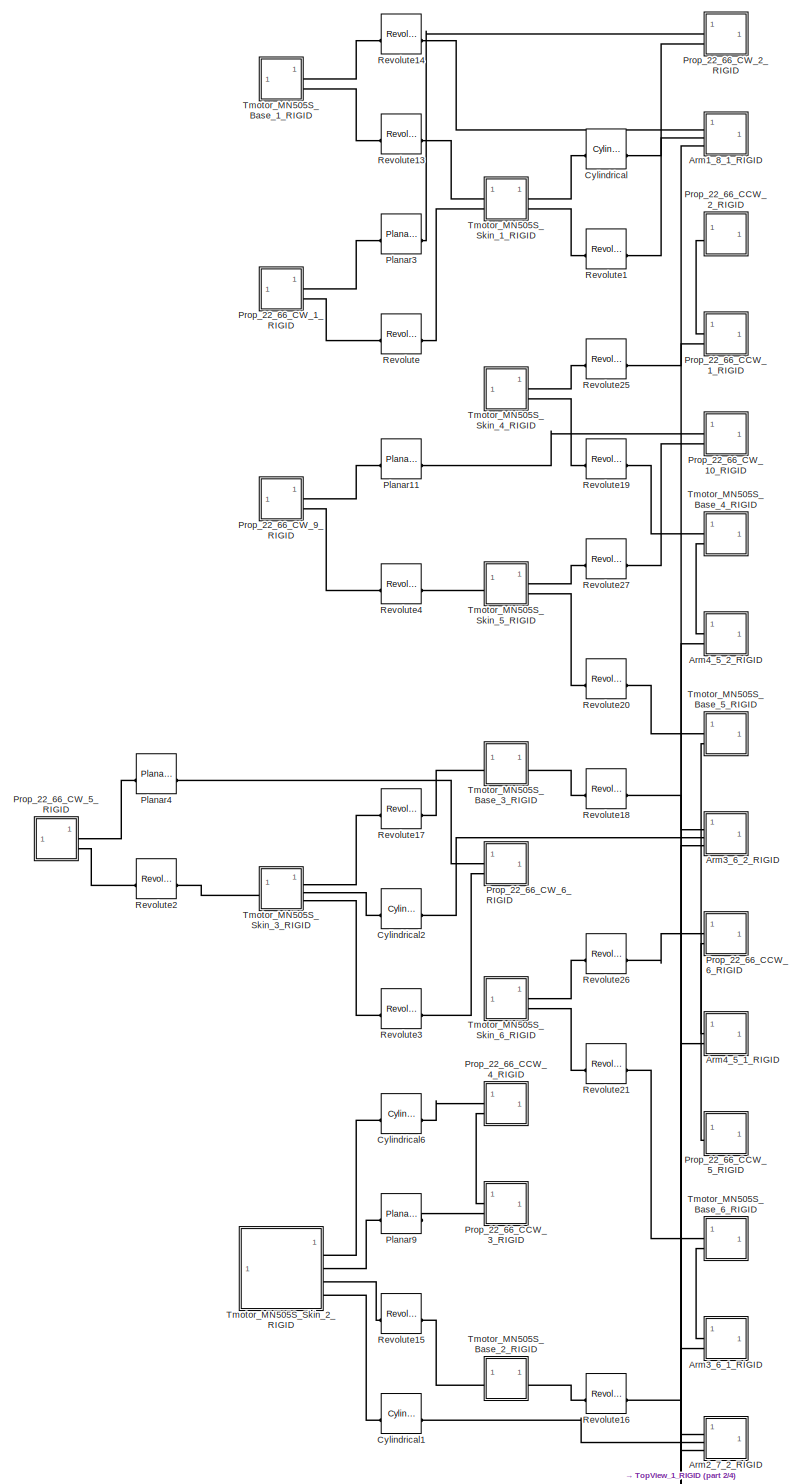
[diagram: root canvas - part 1/4, top left region]
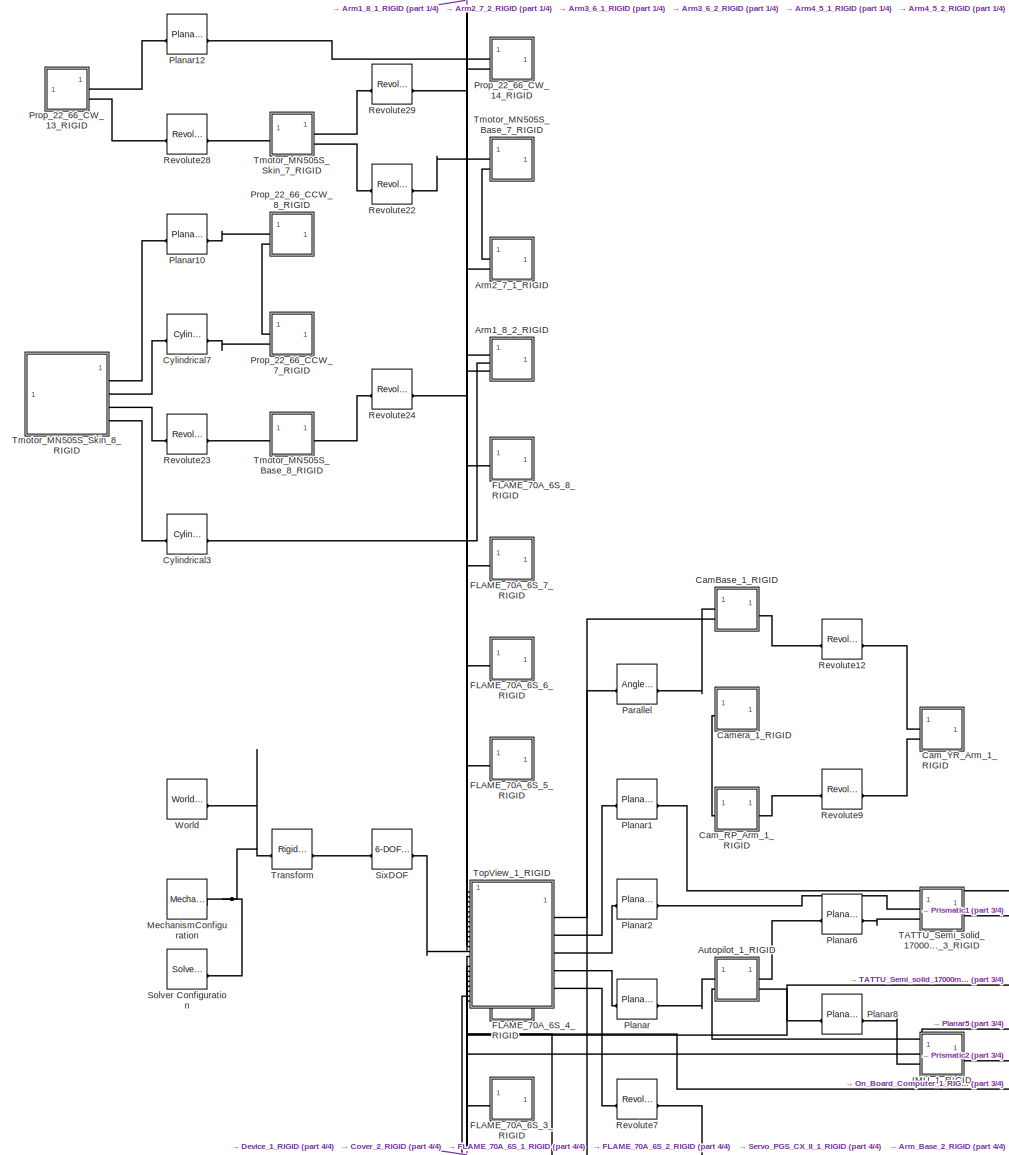
[diagram: root canvas - part 2/4, central region]
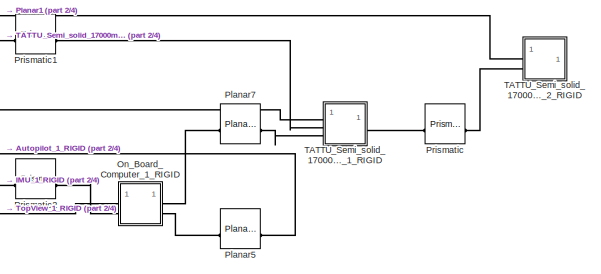
[diagram: root canvas - part 3/4, bottom right region]
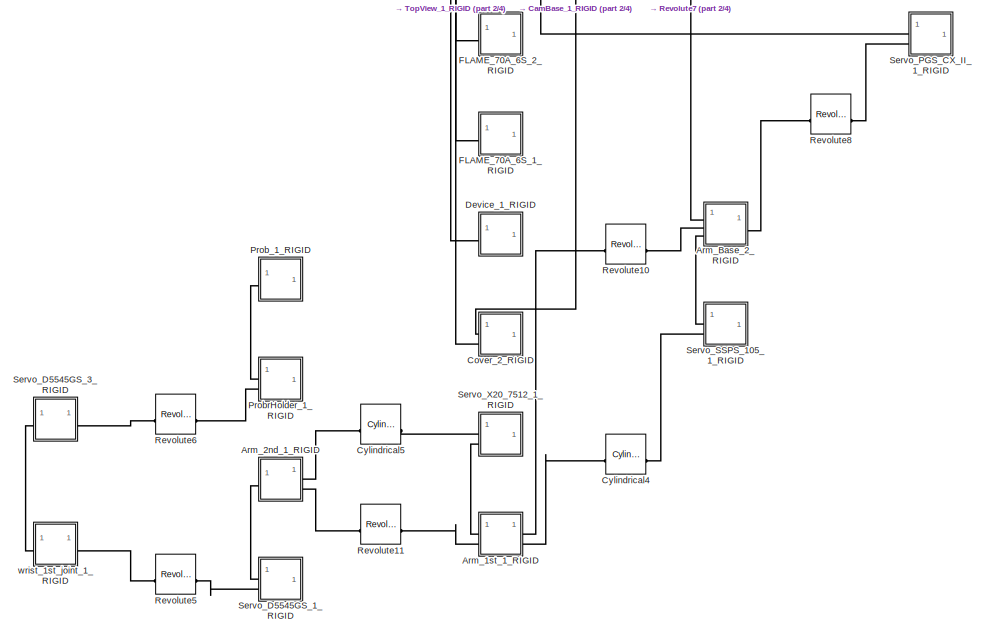
[diagram: root canvas - part 4/4, bottom center region]
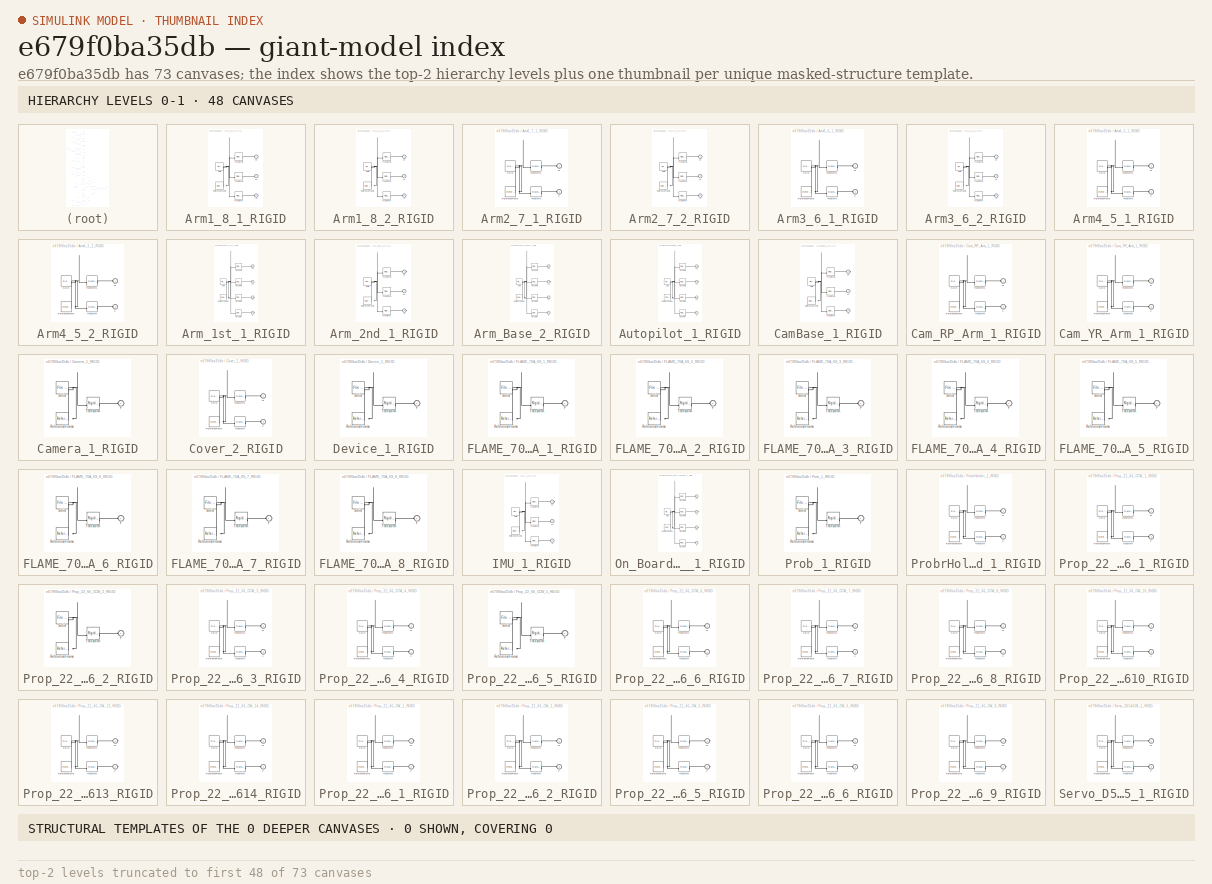
[diagram: thumbnail index - top-2 hierarchy levels (73 canvases (first 48 of 73 shown)) + 0 structural-template representatives of the remaining 0 canvases]
MODEL slx_e679f0ba35db
KIND model
CONFIG AbsTol = auto
CONFIG EnableMultiTasking = off
CONFIG FixedStep = auto
CONFIG MaxStep = auto
CONFIG MinStep = auto
CONFIG RelTol = 1e-3
CONFIG SampleTimeConstraint = Unconstrained
CONFIG SolverName = VariableStepAuto
CONFIG StartTime = 0.0
CONFIG StopTime = 10.0
WORKSPACE source: external: MATLAB File  (data not in archive)
BLOCK [SubSystem] Arm1_8_1_RIGID
BLOCK [PMIOPort] Arm1_8_1_RIGID/F
  Port = 2
  Side = Left
BLOCK [PMIOPort] Arm1_8_1_RIGID/F1
  Port = 3
  Side = Left
BLOCK [PMIOPort] Arm1_8_1_RIGID/F2
  Side = Left
BLOCK [Reference] Arm1_8_1_RIGID/ReferenceFrame  REF=sm_lib/Frames and
Transforms/Reference
Frame
  SourceBlock = sm_lib/Frames and\nTransforms/Reference\nFrame
  SourceType = Reference\nFrame
BLOCK [Reference] Arm1_8_1_RIGID/Solid  REF=sm_lib/Body Elements/File Solid
  SourceBlock = sm_lib/Body Elements/File Solid
  SourceType = File Solid
BLOCK [Reference] Arm1_8_1_RIGID/Transform  REF=sm_lib/Frames and
Transforms/Rigid
Transform
  SourceBlock = sm_lib/Frames and\nTransforms/Rigid\nTransform
  SourceType = Rigid\nTransform
BLOCK [Reference] Arm1_8_1_RIGID/Transform1  REF=sm_lib/Frames and
Transforms/Rigid
Transform
  SourceBlock = sm_lib/Frames and\nTransforms/Rigid\nTransform
  SourceType = Rigid\nTransform
BLOCK [Reference] Arm1_8_1_RIGID/Transform2  REF=sm_lib/Frames and
Transforms/Rigid
Transform
  SourceBlock = sm_lib/Frames and\nTransforms/Rigid\nTransform
  SourceType = Rigid\nTransform
BLOCK [SubSystem] Arm1_8_2_RIGID
BLOCK [PMIOPort] Arm1_8_2_RIGID/F
  Port = 2
  Side = Left
BLOCK [PMIOPort] Arm1_8_2_RIGID/F1
  Port = 3
  Side = Left
BLOCK [PMIOPort] Arm1_8_2_RIGID/F2
  Side = Left
BLOCK [Reference] Arm1_8_2_RIGID/ReferenceFrame  REF=sm_lib/Frames and
Transforms/Reference
Frame
  SourceBlock = sm_lib/Frames and\nTransforms/Reference\nFrame
  SourceType = Reference\nFrame
BLOCK [Reference] Arm1_8_2_RIGID/Solid  REF=sm_lib/Body Elements/File Solid
  SourceBlock = sm_lib/Body Elements/File Solid
  SourceType = File Solid
BLOCK [Reference] Arm1_8_2_RIGID/Transform  REF=sm_lib/Frames and
Transforms/Rigid
Transform
  SourceBlock = sm_lib/Frames and\nTransforms/Rigid\nTransform
  SourceType = Rigid\nTransform
BLOCK [Reference] Arm1_8_2_RIGID/Transform1  REF=sm_lib/Frames and
Transforms/Rigid
Transform
  SourceBlock = sm_lib/Frames and\nTransforms/Rigid\nTransform
  SourceType = Rigid\nTransform
BLOCK [Reference] Arm1_8_2_RIGID/Transform2  REF=sm_lib/Frames and
Transforms/Rigid
Transform
  SourceBlock = sm_lib/Frames and\nTransforms/Rigid\nTransform
  SourceType = Rigid\nTransform
BLOCK [SubSystem] Arm2_7_1_RIGID
BLOCK [PMIOPort] Arm2_7_1_RIGID/F
  Port = 2
  Side = Left
BLOCK [PMIOPort] Arm2_7_1_RIGID/F1
  Side = Left
BLOCK [Reference] Arm2_7_1_RIGID/ReferenceFrame  REF=sm_lib/Frames and
Transforms/Reference
Frame
  SourceBlock = sm_lib/Frames and\nTransforms/Reference\nFrame
  SourceType = Reference\nFrame
BLOCK [Reference] Arm2_7_1_RIGID/Solid  REF=sm_lib/Body Elements/File Solid
  SourceBlock = sm_lib/Body Elements/File Solid
  SourceType = File Solid
BLOCK [Reference] Arm2_7_1_RIGID/Transform  REF=sm_lib/Frames and
Transforms/Rigid
Transform
  SourceBlock = sm_lib/Frames and\nTransforms/Rigid\nTransform
  SourceType = Rigid\nTransform
BLOCK [Reference] Arm2_7_1_RIGID/Transform1  REF=sm_lib/Frames and
Transforms/Rigid
Transform
  SourceBlock = sm_lib/Frames and\nTransforms/Rigid\nTransform
  SourceType = Rigid\nTransform
BLOCK [SubSystem] Arm2_7_2_RIGID
BLOCK [PMIOPort] Arm2_7_2_RIGID/F
  Port = 2
  Side = Left
BLOCK [PMIOPort] Arm2_7_2_RIGID/F1
  Port = 3
  Side = Left
BLOCK [PMIOPort] Arm2_7_2_RIGID/F2
  Side = Left
BLOCK [Reference] Arm2_7_2_RIGID/ReferenceFrame  REF=sm_lib/Frames and
Transforms/Reference
Frame
  SourceBlock = sm_lib/Frames and\nTransforms/Reference\nFrame
  SourceType = Reference\nFrame
BLOCK [Reference] Arm2_7_2_RIGID/Solid  REF=sm_lib/Body Elements/File Solid
  SourceBlock = sm_lib/Body Elements/File Solid
  SourceType = File Solid
BLOCK [Reference] Arm2_7_2_RIGID/Transform  REF=sm_lib/Frames and
Transforms/Rigid
Transform
  SourceBlock = sm_lib/Frames and\nTransforms/Rigid\nTransform
  SourceType = Rigid\nTransform
BLOCK [Reference] Arm2_7_2_RIGID/Transform1  REF=sm_lib/Frames and
Transforms/Rigid
Transform
  SourceBlock = sm_lib/Frames and\nTransforms/Rigid\nTransform
  SourceType = Rigid\nTransform
BLOCK [Reference] Arm2_7_2_RIGID/Transform2  REF=sm_lib/Frames and
Transforms/Rigid
Transform
  SourceBlock = sm_lib/Frames and\nTransforms/Rigid\nTransform
  SourceType = Rigid\nTransform
BLOCK [SubSystem] Arm3_6_1_RIGID
BLOCK [PMIOPort] Arm3_6_1_RIGID/F
  Port = 2
  Side = Left
BLOCK [PMIOPort] Arm3_6_1_RIGID/F1
  Side = Left
BLOCK [Reference] Arm3_6_1_RIGID/ReferenceFrame  REF=sm_lib/Frames and
Transforms/Reference
Frame
  SourceBlock = sm_lib/Frames and\nTransforms/Reference\nFrame
  SourceType = Reference\nFrame
BLOCK [Reference] Arm3_6_1_RIGID/Solid  REF=sm_lib/Body Elements/File Solid
  SourceBlock = sm_lib/Body Elements/File Solid
  SourceType = File Solid
BLOCK [Reference] Arm3_6_1_RIGID/Transform  REF=sm_lib/Frames and
Transforms/Rigid
Transform
  SourceBlock = sm_lib/Frames and\nTransforms/Rigid\nTransform
  SourceType = Rigid\nTransform
BLOCK [Reference] Arm3_6_1_RIGID/Transform1  REF=sm_lib/Frames and
Transforms/Rigid
Transform
  SourceBlock = sm_lib/Frames and\nTransforms/Rigid\nTransform
  SourceType = Rigid\nTransform
BLOCK [SubSystem] Arm3_6_2_RIGID
BLOCK [PMIOPort] Arm3_6_2_RIGID/F
  Port = 2
  Side = Left
BLOCK [PMIOPort] Arm3_6_2_RIGID/F1
  Port = 3
  Side = Left
BLOCK [PMIOPort] Arm3_6_2_RIGID/F2
  Side = Left
BLOCK [Reference] Arm3_6_2_RIGID/ReferenceFrame  REF=sm_lib/Frames and
Transforms/Reference
Frame
  SourceBlock = sm_lib/Frames and\nTransforms/Reference\nFrame
  SourceType = Reference\nFrame
BLOCK [Reference] Arm3_6_2_RIGID/Solid  REF=sm_lib/Body Elements/File Solid
  SourceBlock = sm_lib/Body Elements/File Solid
  SourceType = File Solid
BLOCK [Reference] Arm3_6_2_RIGID/Transform  REF=sm_lib/Frames and
Transforms/Rigid
Transform
  SourceBlock = sm_lib/Frames and\nTransforms/Rigid\nTransform
  SourceType = Rigid\nTransform
BLOCK [Reference] Arm3_6_2_RIGID/Transform1  REF=sm_lib/Frames and
Transforms/Rigid
Transform
  SourceBlock = sm_lib/Frames and\nTransforms/Rigid\nTransform
  SourceType = Rigid\nTransform
BLOCK [Reference] Arm3_6_2_RIGID/Transform2  REF=sm_lib/Frames and
Transforms/Rigid
Transform
  SourceBlock = sm_lib/Frames and\nTransforms/Rigid\nTransform
  SourceType = Rigid\nTransform
BLOCK [SubSystem] Arm4_5_1_RIGID
BLOCK [PMIOPort] Arm4_5_1_RIGID/F
  Port = 2
  Side = Left
BLOCK [PMIOPort] Arm4_5_1_RIGID/F1
  Side = Left
BLOCK [Reference] Arm4_5_1_RIGID/ReferenceFrame  REF=sm_lib/Frames and
Transforms/Reference
Frame
  SourceBlock = sm_lib/Frames and\nTransforms/Reference\nFrame
  SourceType = Reference\nFrame
BLOCK [Reference] Arm4_5_1_RIGID/Solid  REF=sm_lib/Body Elements/File Solid
  SourceBlock = sm_lib/Body Elements/File Solid
  SourceType = File Solid
BLOCK [Reference] Arm4_5_1_RIGID/Transform  REF=sm_lib/Frames and
Transforms/Rigid
Transform
  SourceBlock = sm_lib/Frames and\nTransforms/Rigid\nTransform
  SourceType = Rigid\nTransform
BLOCK [Reference] Arm4_5_1_RIGID/Transform1  REF=sm_lib/Frames and
Transforms/Rigid
Transform
  SourceBlock = sm_lib/Frames and\nTransforms/Rigid\nTransform
  SourceType = Rigid\nTransform
BLOCK [SubSystem] Arm4_5_2_RIGID
BLOCK [PMIOPort] Arm4_5_2_RIGID/F
  Port = 2
  Side = Left
BLOCK [PMIOPort] Arm4_5_2_RIGID/F1
  Side = Left
BLOCK [Reference] Arm4_5_2_RIGID/ReferenceFrame  REF=sm_lib/Frames and
Transforms/Reference
Frame
  SourceBlock = sm_lib/Frames and\nTransforms/Reference\nFrame
  SourceType = Reference\nFrame
BLOCK [Reference] Arm4_5_2_RIGID/Solid  REF=sm_lib/Body Elements/File Solid
  SourceBlock = sm_lib/Body Elements/File Solid
  SourceType = File Solid
BLOCK [Reference] Arm4_5_2_RIGID/Transform  REF=sm_lib/Frames and
Transforms/Rigid
Transform
  SourceBlock = sm_lib/Frames and\nTransforms/Rigid\nTransform
  SourceType = Rigid\nTransform
BLOCK [Reference] Arm4_5_2_RIGID/Transform1  REF=sm_lib/Frames and
Transforms/Rigid
Transform
  SourceBlock = sm_lib/Frames and\nTransforms/Rigid\nTransform
  SourceType = Rigid\nTransform
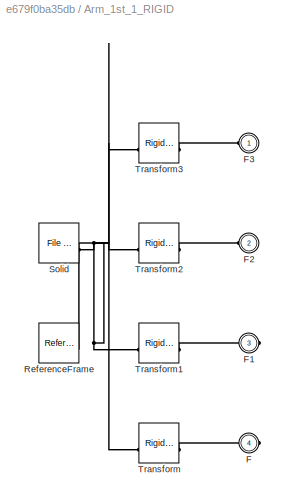
BLOCK [SubSystem] Arm_1st_1_RIGID
BLOCK [PMIOPort] Arm_1st_1_RIGID/F
  Port = 4
  Side = Right
BLOCK [PMIOPort] Arm_1st_1_RIGID/F1
  Port = 3
  Side = Right
BLOCK [PMIOPort] Arm_1st_1_RIGID/F2
  Port = 2
  Side = Left
BLOCK [PMIOPort] Arm_1st_1_RIGID/F3
  Side = Left
BLOCK [Reference] Arm_1st_1_RIGID/ReferenceFrame  REF=sm_lib/Frames and
Transforms/Reference
Frame
  SourceBlock = sm_lib/Frames and\nTransforms/Reference\nFrame
  SourceType = Reference\nFrame
BLOCK [Reference] Arm_1st_1_RIGID/Solid  REF=sm_lib/Body Elements/File Solid
  SourceBlock = sm_lib/Body Elements/File Solid
  SourceType = File Solid
BLOCK [Reference] Arm_1st_1_RIGID/Transform  REF=sm_lib/Frames and
Transforms/Rigid
Transform
  SourceBlock = sm_lib/Frames and\nTransforms/Rigid\nTransform
  SourceType = Rigid\nTransform
BLOCK [Reference] Arm_1st_1_RIGID/Transform1  REF=sm_lib/Frames and
Transforms/Rigid
Transform
  SourceBlock = sm_lib/Frames and\nTransforms/Rigid\nTransform
  SourceType = Rigid\nTransform
BLOCK [Reference] Arm_1st_1_RIGID/Transform2  REF=sm_lib/Frames and
Transforms/Rigid
Transform
  SourceBlock = sm_lib/Frames and\nTransforms/Rigid\nTransform
  SourceType = Rigid\nTransform
BLOCK [Reference] Arm_1st_1_RIGID/Transform3  REF=sm_lib/Frames and
Transforms/Rigid
Transform
  SourceBlock = sm_lib/Frames and\nTransforms/Rigid\nTransform
  SourceType = Rigid\nTransform
BLOCK [SubSystem] Arm_2nd_1_RIGID
BLOCK [PMIOPort] Arm_2nd_1_RIGID/F
  Port = 3
  Side = Right
BLOCK [PMIOPort] Arm_2nd_1_RIGID/F1
  Side = Left
BLOCK [PMIOPort] Arm_2nd_1_RIGID/F2
  Port = 2
  Side = Right
BLOCK [Reference] Arm_2nd_1_RIGID/ReferenceFrame  REF=sm_lib/Frames and
Transforms/Reference
Frame
  SourceBlock = sm_lib/Frames and\nTransforms/Reference\nFrame
  SourceType = Reference\nFrame
BLOCK [Reference] Arm_2nd_1_RIGID/Solid  REF=sm_lib/Body Elements/File Solid
  SourceBlock = sm_lib/Body Elements/File Solid
  SourceType = File Solid
BLOCK [Reference] Arm_2nd_1_RIGID/Transform  REF=sm_lib/Frames and
Transforms/Rigid
Transform
  SourceBlock = sm_lib/Frames and\nTransforms/Rigid\nTransform
  SourceType = Rigid\nTransform
BLOCK [Reference] Arm_2nd_1_RIGID/Transform1  REF=sm_lib/Frames and
Transforms/Rigid
Transform
  SourceBlock = sm_lib/Frames and\nTransforms/Rigid\nTransform
  SourceType = Rigid\nTransform
BLOCK [Reference] Arm_2nd_1_RIGID/Transform2  REF=sm_lib/Frames and
Transforms/Rigid
Transform
  SourceBlock = sm_lib/Frames and\nTransforms/Rigid\nTransform
  SourceType = Rigid\nTransform
BLOCK [SubSystem] Arm_Base_2_RIGID
BLOCK [PMIOPort] Arm_Base_2_RIGID/F
  Port = 3
  Side = Left
BLOCK [PMIOPort] Arm_Base_2_RIGID/F1
  Side = Left
BLOCK [PMIOPort] Arm_Base_2_RIGID/F2
  Port = 4
  Side = Right
BLOCK [PMIOPort] Arm_Base_2_RIGID/F3
  Port = 2
  Side = Left
BLOCK [Reference] Arm_Base_2_RIGID/ReferenceFrame  REF=sm_lib/Frames and
Transforms/Reference
Frame
  SourceBlock = sm_lib/Frames and\nTransforms/Reference\nFrame
  SourceType = Reference\nFrame
BLOCK [Reference] Arm_Base_2_RIGID/Solid  REF=sm_lib/Body Elements/File Solid
  SourceBlock = sm_lib/Body Elements/File Solid
  SourceType = File Solid
BLOCK [Reference] Arm_Base_2_RIGID/Transform  REF=sm_lib/Frames and
Transforms/Rigid
Transform
  SourceBlock = sm_lib/Frames and\nTransforms/Rigid\nTransform
  SourceType = Rigid\nTransform
BLOCK [Reference] Arm_Base_2_RIGID/Transform1  REF=sm_lib/Frames and
Transforms/Rigid
Transform
  SourceBlock = sm_lib/Frames and\nTransforms/Rigid\nTransform
  SourceType = Rigid\nTransform
BLOCK [Reference] Arm_Base_2_RIGID/Transform2  REF=sm_lib/Frames and
Transforms/Rigid
Transform
  SourceBlock = sm_lib/Frames and\nTransforms/Rigid\nTransform
  SourceType = Rigid\nTransform
BLOCK [Reference] Arm_Base_2_RIGID/Transform3  REF=sm_lib/Frames and
Transforms/Rigid
Transform
  SourceBlock = sm_lib/Frames and\nTransforms/Rigid\nTransform
  SourceType = Rigid\nTransform
BLOCK [SubSystem] Autopilot_1_RIGID
BLOCK [PMIOPort] Autopilot_1_RIGID/F
  Side = Left
BLOCK [PMIOPort] Autopilot_1_RIGID/F1
  Port = 2
  Side = Left
BLOCK [PMIOPort] Autopilot_1_RIGID/F2
  Port = 3
  Side = Right
BLOCK [PMIOPort] Autopilot_1_RIGID/F3
  Port = 4
  Side = Right
BLOCK [Reference] Autopilot_1_RIGID/ReferenceFrame  REF=sm_lib/Frames and
Transforms/Reference
Frame
  SourceBlock = sm_lib/Frames and\nTransforms/Reference\nFrame
  SourceType = Reference\nFrame
BLOCK [Reference] Autopilot_1_RIGID/Solid  REF=sm_lib/Body Elements/File Solid
  SourceBlock = sm_lib/Body Elements/File Solid
  SourceType = File Solid
BLOCK [Reference] Autopilot_1_RIGID/Transform  REF=sm_lib/Frames and
Transforms/Rigid
Transform
  SourceBlock = sm_lib/Frames and\nTransforms/Rigid\nTransform
  SourceType = Rigid\nTransform
BLOCK [Reference] Autopilot_1_RIGID/Transform1  REF=sm_lib/Frames and
Transforms/Rigid
Transform
  SourceBlock = sm_lib/Frames and\nTransforms/Rigid\nTransform
  SourceType = Rigid\nTransform
BLOCK [Reference] Autopilot_1_RIGID/Transform2  REF=sm_lib/Frames and
Transforms/Rigid
Transform
  SourceBlock = sm_lib/Frames and\nTransforms/Rigid\nTransform
  SourceType = Rigid\nTransform
BLOCK [Reference] Autopilot_1_RIGID/Transform3  REF=sm_lib/Frames and
Transforms/Rigid
Transform
  SourceBlock = sm_lib/Frames and\nTransforms/Rigid\nTransform
  SourceType = Rigid\nTransform
BLOCK [SubSystem] CamBase_1_RIGID
BLOCK [PMIOPort] CamBase_1_RIGID/F
  Side = Left
BLOCK [PMIOPort] CamBase_1_RIGID/F1
  Port = 2
  Side = Left
BLOCK [PMIOPort] CamBase_1_RIGID/F2
  Port = 3
  Side = Right
BLOCK [Reference] CamBase_1_RIGID/ReferenceFrame  REF=sm_lib/Frames and
Transforms/Reference
Frame
  SourceBlock = sm_lib/Frames and\nTransforms/Reference\nFrame
  SourceType = Reference\nFrame
BLOCK [Reference] CamBase_1_RIGID/Solid  REF=sm_lib/Body Elements/File Solid
  SourceBlock = sm_lib/Body Elements/File Solid
  SourceType = File Solid
BLOCK [Reference] CamBase_1_RIGID/Transform  REF=sm_lib/Frames and
Transforms/Rigid
Transform
  SourceBlock = sm_lib/Frames and\nTransforms/Rigid\nTransform
  SourceType = Rigid\nTransform
BLOCK [Reference] CamBase_1_RIGID/Transform1  REF=sm_lib/Frames and
Transforms/Rigid
Transform
  SourceBlock = sm_lib/Frames and\nTransforms/Rigid\nTransform
  SourceType = Rigid\nTransform
BLOCK [Reference] CamBase_1_RIGID/Transform2  REF=sm_lib/Frames and
Transforms/Rigid
Transform
  SourceBlock = sm_lib/Frames and\nTransforms/Rigid\nTransform
  SourceType = Rigid\nTransform
BLOCK [SubSystem] Cam_RP_Arm_1_RIGID
BLOCK [PMIOPort] Cam_RP_Arm_1_RIGID/F
  Port = 2
  Side = Right
BLOCK [PMIOPort] Cam_RP_Arm_1_RIGID/F1
  Side = Left
BLOCK [Reference] Cam_RP_Arm_1_RIGID/ReferenceFrame  REF=sm_lib/Frames and
Transforms/Reference
Frame
  SourceBlock = sm_lib/Frames and\nTransforms/Reference\nFrame
  SourceType = Reference\nFrame
BLOCK [Reference] Cam_RP_Arm_1_RIGID/Solid  REF=sm_lib/Body Elements/File Solid
  SourceBlock = sm_lib/Body Elements/File Solid
  SourceType = File Solid
BLOCK [Reference] Cam_RP_Arm_1_RIGID/Transform  REF=sm_lib/Frames and
Transforms/Rigid
Transform
  SourceBlock = sm_lib/Frames and\nTransforms/Rigid\nTransform
  SourceType = Rigid\nTransform
BLOCK [Reference] Cam_RP_Arm_1_RIGID/Transform1  REF=sm_lib/Frames and
Transforms/Rigid
Transform
  SourceBlock = sm_lib/Frames and\nTransforms/Rigid\nTransform
  SourceType = Rigid\nTransform
BLOCK [SubSystem] Cam_YR_Arm_1_RIGID
BLOCK [PMIOPort] Cam_YR_Arm_1_RIGID/F
  Port = 2
  Side = Left
BLOCK [PMIOPort] Cam_YR_Arm_1_RIGID/F1
  Side = Left
BLOCK [Reference] Cam_YR_Arm_1_RIGID/ReferenceFrame  REF=sm_lib/Frames and
Transforms/Reference
Frame
  SourceBlock = sm_lib/Frames and\nTransforms/Reference\nFrame
  SourceType = Reference\nFrame
BLOCK [Reference] Cam_YR_Arm_1_RIGID/Solid  REF=sm_lib/Body Elements/File Solid
  SourceBlock = sm_lib/Body Elements/File Solid
  SourceType = File Solid
BLOCK [Reference] Cam_YR_Arm_1_RIGID/Transform  REF=sm_lib/Frames and
Transforms/Rigid
Transform
  SourceBlock = sm_lib/Frames and\nTransforms/Rigid\nTransform
  SourceType = Rigid\nTransform
BLOCK [Reference] Cam_YR_Arm_1_RIGID/Transform1  REF=sm_lib/Frames and
Transforms/Rigid
Transform
  SourceBlock = sm_lib/Frames and\nTransforms/Rigid\nTransform
  SourceType = Rigid\nTransform
BLOCK [SubSystem] Camera_1_RIGID
BLOCK [PMIOPort] Camera_1_RIGID/F
  Side = Left
BLOCK [Reference] Camera_1_RIGID/ReferenceFrame  REF=sm_lib/Frames and
Transforms/Reference
Frame
  SourceBlock = sm_lib/Frames and\nTransforms/Reference\nFrame
  SourceType = Reference\nFrame
BLOCK [Reference] Camera_1_RIGID/Solid  REF=sm_lib/Body Elements/File Solid
  SourceBlock = sm_lib/Body Elements/File Solid
  SourceType = File Solid
BLOCK [Reference] Camera_1_RIGID/Transform  REF=sm_lib/Frames and
Transforms/Rigid
Transform
  SourceBlock = sm_lib/Frames and\nTransforms/Rigid\nTransform
  SourceType = Rigid\nTransform
BLOCK [SubSystem] Cover_2_RIGID
BLOCK [PMIOPort] Cover_2_RIGID/F
  Port = 2
  Side = Left
BLOCK [PMIOPort] Cover_2_RIGID/F1
  Side = Left
BLOCK [Reference] Cover_2_RIGID/ReferenceFrame  REF=sm_lib/Frames and
Transforms/Reference
Frame
  SourceBlock = sm_lib/Frames and\nTransforms/Reference\nFrame
  SourceType = Reference\nFrame
BLOCK [Reference] Cover_2_RIGID/Solid  REF=sm_lib/Body Elements/File Solid
  SourceBlock = sm_lib/Body Elements/File Solid
  SourceType = File Solid
BLOCK [Reference] Cover_2_RIGID/Transform  REF=sm_lib/Frames and
Transforms/Rigid
Transform
  SourceBlock = sm_lib/Frames and\nTransforms/Rigid\nTransform
  SourceType = Rigid\nTransform
BLOCK [Reference] Cover_2_RIGID/Transform1  REF=sm_lib/Frames and
Transforms/Rigid
Transform
  SourceBlock = sm_lib/Frames and\nTransforms/Rigid\nTransform
  SourceType = Rigid\nTransform
BLOCK [Reference] Cylindrical  REF=sm_lib/Joints/Cylindrical
Joint
  SourceBlock = sm_lib/Joints/Cylindrical\nJoint
  SourceType = Cylindrical\nJoint
BLOCK [Reference] Cylindrical1  REF=sm_lib/Joints/Cylindrical
Joint
  SourceBlock = sm_lib/Joints/Cylindrical\nJoint
  SourceType = Cylindrical\nJoint
BLOCK [Reference] Cylindrical2  REF=sm_lib/Joints/Cylindrical
Joint
  SourceBlock = sm_lib/Joints/Cylindrical\nJoint
  SourceType = Cylindrical\nJoint
BLOCK [Reference] Cylindrical3  REF=sm_lib/Joints/Cylindrical
Joint
  SourceBlock = sm_lib/Joints/Cylindrical\nJoint
  SourceType = Cylindrical\nJoint
BLOCK [Reference] Cylindrical4  REF=sm_lib/Joints/Cylindrical
Joint
  SourceBlock = sm_lib/Joints/Cylindrical\nJoint
  SourceType = Cylindrical\nJoint
BLOCK [Reference] Cylindrical5  REF=sm_lib/Joints/Cylindrical
Joint
  SourceBlock = sm_lib/Joints/Cylindrical\nJoint
  SourceType = Cylindrical\nJoint
BLOCK [Reference] Cylindrical6  REF=sm_lib/Joints/Cylindrical
Joint
  SourceBlock = sm_lib/Joints/Cylindrical\nJoint
  SourceType = Cylindrical\nJoint
BLOCK [Reference] Cylindrical7  REF=sm_lib/Joints/Cylindrical
Joint
  SourceBlock = sm_lib/Joints/Cylindrical\nJoint
  SourceType = Cylindrical\nJoint
BLOCK [SubSystem] Device_1_RIGID
BLOCK [PMIOPort] Device_1_RIGID/F
  Side = Left
BLOCK [Reference] Device_1_RIGID/ReferenceFrame  REF=sm_lib/Frames and
Transforms/Reference
Frame
  SourceBlock = sm_lib/Frames and\nTransforms/Reference\nFrame
  SourceType = Reference\nFrame
BLOCK [Reference] Device_1_RIGID/Solid  REF=sm_lib/Body Elements/File Solid
  SourceBlock = sm_lib/Body Elements/File Solid
  SourceType = File Solid
BLOCK [Reference] Device_1_RIGID/Transform  REF=sm_lib/Frames and
Transforms/Rigid
Transform
  SourceBlock = sm_lib/Frames and\nTransforms/Rigid\nTransform
  SourceType = Rigid\nTransform
BLOCK [SubSystem] FLAME_70A_6S_1_RIGID
BLOCK [PMIOPort] FLAME_70A_6S_1_RIGID/F
  Side = Left
BLOCK [Reference] FLAME_70A_6S_1_RIGID/ReferenceFrame  REF=sm_lib/Frames and
Transforms/Reference
Frame
  SourceBlock = sm_lib/Frames and\nTransforms/Reference\nFrame
  SourceType = Reference\nFrame
BLOCK [Reference] FLAME_70A_6S_1_RIGID/Solid  REF=sm_lib/Body Elements/File Solid
  SourceBlock = sm_lib/Body Elements/File Solid
  SourceType = File Solid
BLOCK [Reference] FLAME_70A_6S_1_RIGID/Transform  REF=sm_lib/Frames and
Transforms/Rigid
Transform
  SourceBlock = sm_lib/Frames and\nTransforms/Rigid\nTransform
  SourceType = Rigid\nTransform
BLOCK [SubSystem] FLAME_70A_6S_2_RIGID
BLOCK [PMIOPort] FLAME_70A_6S_2_RIGID/F
  Side = Left
BLOCK [Reference] FLAME_70A_6S_2_RIGID/ReferenceFrame  REF=sm_lib/Frames and
Transforms/Reference
Frame
  SourceBlock = sm_lib/Frames and\nTransforms/Reference\nFrame
  SourceType = Reference\nFrame
BLOCK [Reference] FLAME_70A_6S_2_RIGID/Solid  REF=sm_lib/Body Elements/File Solid
  SourceBlock = sm_lib/Body Elements/File Solid
  SourceType = File Solid
BLOCK [Reference] FLAME_70A_6S_2_RIGID/Transform  REF=sm_lib/Frames and
Transforms/Rigid
Transform
  SourceBlock = sm_lib/Frames and\nTransforms/Rigid\nTransform
  SourceType = Rigid\nTransform
BLOCK [SubSystem] FLAME_70A_6S_3_RIGID
BLOCK [PMIOPort] FLAME_70A_6S_3_RIGID/F
  Side = Left
BLOCK [Reference] FLAME_70A_6S_3_RIGID/ReferenceFrame  REF=sm_lib/Frames and
Transforms/Reference
Frame
  SourceBlock = sm_lib/Frames and\nTransforms/Reference\nFrame
  SourceType = Reference\nFrame
BLOCK [Reference] FLAME_70A_6S_3_RIGID/Solid  REF=sm_lib/Body Elements/File Solid
  SourceBlock = sm_lib/Body Elements/File Solid
  SourceType = File Solid
BLOCK [Reference] FLAME_70A_6S_3_RIGID/Transform  REF=sm_lib/Frames and
Transforms/Rigid
Transform
  SourceBlock = sm_lib/Frames and\nTransforms/Rigid\nTransform
  SourceType = Rigid\nTransform
BLOCK [SubSystem] FLAME_70A_6S_4_RIGID
BLOCK [PMIOPort] FLAME_70A_6S_4_RIGID/F
  Side = Left
BLOCK [Reference] FLAME_70A_6S_4_RIGID/ReferenceFrame  REF=sm_lib/Frames and
Transforms/Reference
Frame
  SourceBlock = sm_lib/Frames and\nTransforms/Reference\nFrame
  SourceType = Reference\nFrame
BLOCK [Reference] FLAME_70A_6S_4_RIGID/Solid  REF=sm_lib/Body Elements/File Solid
  SourceBlock = sm_lib/Body Elements/File Solid
  SourceType = File Solid
BLOCK [Reference] FLAME_70A_6S_4_RIGID/Transform  REF=sm_lib/Frames and
Transforms/Rigid
Transform
  SourceBlock = sm_lib/Frames and\nTransforms/Rigid\nTransform
  SourceType = Rigid\nTransform
BLOCK [SubSystem] FLAME_70A_6S_5_RIGID
BLOCK [PMIOPort] FLAME_70A_6S_5_RIGID/F
  Side = Left
BLOCK [Reference] FLAME_70A_6S_5_RIGID/ReferenceFrame  REF=sm_lib/Frames and
Transforms/Reference
Frame
  SourceBlock = sm_lib/Frames and\nTransforms/Reference\nFrame
  SourceType = Reference\nFrame
BLOCK [Reference] FLAME_70A_6S_5_RIGID/Solid  REF=sm_lib/Body Elements/File Solid
  SourceBlock = sm_lib/Body Elements/File Solid
  SourceType = File Solid
BLOCK [Reference] FLAME_70A_6S_5_RIGID/Transform  REF=sm_lib/Frames and
Transforms/Rigid
Transform
  SourceBlock = sm_lib/Frames and\nTransforms/Rigid\nTransform
  SourceType = Rigid\nTransform
BLOCK [SubSystem] FLAME_70A_6S_6_RIGID
BLOCK [PMIOPort] FLAME_70A_6S_6_RIGID/F
  Side = Left
BLOCK [Reference] FLAME_70A_6S_6_RIGID/ReferenceFrame  REF=sm_lib/Frames and
Transforms/Reference
Frame
  SourceBlock = sm_lib/Frames and\nTransforms/Reference\nFrame
  SourceType = Reference\nFrame
BLOCK [Reference] FLAME_70A_6S_6_RIGID/Solid  REF=sm_lib/Body Elements/File Solid
  SourceBlock = sm_lib/Body Elements/File Solid
  SourceType = File Solid
BLOCK [Reference] FLAME_70A_6S_6_RIGID/Transform  REF=sm_lib/Frames and
Transforms/Rigid
Transform
  SourceBlock = sm_lib/Frames and\nTransforms/Rigid\nTransform
  SourceType = Rigid\nTransform
BLOCK [SubSystem] FLAME_70A_6S_7_RIGID
BLOCK [PMIOPort] FLAME_70A_6S_7_RIGID/F
  Side = Left
BLOCK [Reference] FLAME_70A_6S_7_RIGID/ReferenceFrame  REF=sm_lib/Frames and
Transforms/Reference
Frame
  SourceBlock = sm_lib/Frames and\nTransforms/Reference\nFrame
  SourceType = Reference\nFrame
BLOCK [Reference] FLAME_70A_6S_7_RIGID/Solid  REF=sm_lib/Body Elements/File Solid
  SourceBlock = sm_lib/Body Elements/File Solid
  SourceType = File Solid
BLOCK [Reference] FLAME_70A_6S_7_RIGID/Transform  REF=sm_lib/Frames and
Transforms/Rigid
Transform
  SourceBlock = sm_lib/Frames and\nTransforms/Rigid\nTransform
  SourceType = Rigid\nTransform
BLOCK [SubSystem] FLAME_70A_6S_8_RIGID
BLOCK [PMIOPort] FLAME_70A_6S_8_RIGID/F
  Side = Left
BLOCK [Reference] FLAME_70A_6S_8_RIGID/ReferenceFrame  REF=sm_lib/Frames and
Transforms/Reference
Frame
  SourceBlock = sm_lib/Frames and\nTransforms/Reference\nFrame
  SourceType = Reference\nFrame
BLOCK [Reference] FLAME_70A_6S_8_RIGID/Solid  REF=sm_lib/Body Elements/File Solid
  SourceBlock = sm_lib/Body Elements/File Solid
  SourceType = File Solid
BLOCK [Reference] FLAME_70A_6S_8_RIGID/Transform  REF=sm_lib/Frames and
Transforms/Rigid
Transform
  SourceBlock = sm_lib/Frames and\nTransforms/Rigid\nTransform
  SourceType = Rigid\nTransform
BLOCK [SubSystem] IMU_1_RIGID
BLOCK [PMIOPort] IMU_1_RIGID/F
  Side = Left
BLOCK [PMIOPort] IMU_1_RIGID/F1
  Port = 2
  Side = Left
BLOCK [PMIOPort] IMU_1_RIGID/F2
  Port = 3
  Side = Right
BLOCK [Reference] IMU_1_RIGID/ReferenceFrame  REF=sm_lib/Frames and
Transforms/Reference
Frame
  SourceBlock = sm_lib/Frames and\nTransforms/Reference\nFrame
  SourceType = Reference\nFrame
BLOCK [Reference] IMU_1_RIGID/Solid  REF=sm_lib/Body Elements/File Solid
  SourceBlock = sm_lib/Body Elements/File Solid
  SourceType = File Solid
BLOCK [Reference] IMU_1_RIGID/Transform  REF=sm_lib/Frames and
Transforms/Rigid
Transform
  SourceBlock = sm_lib/Frames and\nTransforms/Rigid\nTransform
  SourceType = Rigid\nTransform
BLOCK [Reference] IMU_1_RIGID/Transform1  REF=sm_lib/Frames and
Transforms/Rigid
Transform
  SourceBlock = sm_lib/Frames and\nTransforms/Rigid\nTransform
  SourceType = Rigid\nTransform
BLOCK [Reference] IMU_1_RIGID/Transform2  REF=sm_lib/Frames and
Transforms/Rigid
Transform
  SourceBlock = sm_lib/Frames and\nTransforms/Rigid\nTransform
  SourceType = Rigid\nTransform
BLOCK [Reference] MechanismConfiguration  REF=sm_lib/Utilities/Mechanism
Configuration
  SourceBlock = sm_lib/Utilities/Mechanism\nConfiguration
  SourceType = Mechanism\nConfiguration
BLOCK [SubSystem] On_Board_Computer_1_RIGID
BLOCK [PMIOPort] On_Board_Computer_1_RIGID/F
  Side = Left
BLOCK [PMIOPort] On_Board_Computer_1_RIGID/F1
  Port = 4
  Side = Right
BLOCK [PMIOPort] On_Board_Computer_1_RIGID/F2
  Port = 3
  Side = Right
BLOCK [PMIOPort] On_Board_Computer_1_RIGID/F3
  Port = 2
  Side = Left
BLOCK [Reference] On_Board_Computer_1_RIGID/ReferenceFrame  REF=sm_lib/Frames and
Transforms/Reference
Frame
  SourceBlock = sm_lib/Frames and\nTransforms/Reference\nFrame
  SourceType = Reference\nFrame
BLOCK [Reference] On_Board_Computer_1_RIGID/Solid  REF=sm_lib/Body Elements/File Solid
  SourceBlock = sm_lib/Body Elements/File Solid
  SourceType = File Solid
BLOCK [Reference] On_Board_Computer_1_RIGID/Transform  REF=sm_lib/Frames and
Transforms/Rigid
Transform
  SourceBlock = sm_lib/Frames and\nTransforms/Rigid\nTransform
  SourceType = Rigid\nTransform
BLOCK [Reference] On_Board_Computer_1_RIGID/Transform1  REF=sm_lib/Frames and
Transforms/Rigid
Transform
  SourceBlock = sm_lib/Frames and\nTransforms/Rigid\nTransform
  SourceType = Rigid\nTransform
BLOCK [Reference] On_Board_Computer_1_RIGID/Transform2  REF=sm_lib/Frames and
Transforms/Rigid
Transform
  SourceBlock = sm_lib/Frames and\nTransforms/Rigid\nTransform
  SourceType = Rigid\nTransform
BLOCK [Reference] On_Board_Computer_1_RIGID/Transform3  REF=sm_lib/Frames and
Transforms/Rigid
Transform
  SourceBlock = sm_lib/Frames and\nTransforms/Rigid\nTransform
  SourceType = Rigid\nTransform
BLOCK [Reference] Parallel  REF=sm_lib/Constraints/Angle
Constraint
  SourceBlock = sm_lib/Constraints/Angle\nConstraint
  SourceType = Angle\nConstraint
BLOCK [Reference] Planar  REF=sm_lib/Joints/Planar Joint
  SourceBlock = sm_lib/Joints/Planar Joint
  SourceType = Planar Joint
BLOCK [Reference] Planar1  REF=sm_lib/Joints/Planar Joint
  SourceBlock = sm_lib/Joints/Planar Joint
  SourceType = Planar Joint
BLOCK [Reference] Planar10  REF=sm_lib/Joints/Planar Joint
  SourceBlock = sm_lib/Joints/Planar Joint
  SourceType = Planar Joint
BLOCK [Reference] Planar11  REF=sm_lib/Joints/Planar Joint
  SourceBlock = sm_lib/Joints/Planar Joint
  SourceType = Planar Joint
BLOCK [Reference] Planar12  REF=sm_lib/Joints/Planar Joint
  SourceBlock = sm_lib/Joints/Planar Joint
  SourceType = Planar Joint
BLOCK [Reference] Planar2  REF=sm_lib/Joints/Planar Joint
  SourceBlock = sm_lib/Joints/Planar Joint
  SourceType = Planar Joint
BLOCK [Reference] Planar3  REF=sm_lib/Joints/Planar Joint
  SourceBlock = sm_lib/Joints/Planar Joint
  SourceType = Planar Joint
BLOCK [Reference] Planar4  REF=sm_lib/Joints/Planar Joint
  SourceBlock = sm_lib/Joints/Planar Joint
  SourceType = Planar Joint
BLOCK [Reference] Planar5  REF=sm_lib/Joints/Planar Joint
  SourceBlock = sm_lib/Joints/Planar Joint
  SourceType = Planar Joint
BLOCK [Reference] Planar6  REF=sm_lib/Joints/Planar Joint
  SourceBlock = sm_lib/Joints/Planar Joint
  SourceType = Planar Joint
BLOCK [Reference] Planar7  REF=sm_lib/Joints/Planar Joint
  SourceBlock = sm_lib/Joints/Planar Joint
  SourceType = Planar Joint
BLOCK [Reference] Planar8  REF=sm_lib/Joints/Planar Joint
  SourceBlock = sm_lib/Joints/Planar Joint
  SourceType = Planar Joint
BLOCK [Reference] Planar9  REF=sm_lib/Joints/Planar Joint
  SourceBlock = sm_lib/Joints/Planar Joint
  SourceType = Planar Joint
BLOCK [Reference] Prismatic  REF=sm_lib/Joints/Prismatic
Joint
  SourceBlock = sm_lib/Joints/Prismatic\nJoint
  SourceType = Prismatic\nJoint
BLOCK [Reference] Prismatic1  REF=sm_lib/Joints/Prismatic
Joint
  SourceBlock = sm_lib/Joints/Prismatic\nJoint
  SourceType = Prismatic\nJoint
BLOCK [Reference] Prismatic2  REF=sm_lib/Joints/Prismatic
Joint
  SourceBlock = sm_lib/Joints/Prismatic\nJoint
  SourceType = Prismatic\nJoint
BLOCK [SubSystem] Prob_1_RIGID
BLOCK [PMIOPort] Prob_1_RIGID/F
  Side = Left
BLOCK [Reference] Prob_1_RIGID/ReferenceFrame  REF=sm_lib/Frames and
Transforms/Reference
Frame
  SourceBlock = sm_lib/Frames and\nTransforms/Reference\nFrame
  SourceType = Reference\nFrame
BLOCK [Reference] Prob_1_RIGID/Solid  REF=sm_lib/Body Elements/File Solid
  SourceBlock = sm_lib/Body Elements/File Solid
  SourceType = File Solid
BLOCK [Reference] Prob_1_RIGID/Transform  REF=sm_lib/Frames and
Transforms/Rigid
Transform
  SourceBlock = sm_lib/Frames and\nTransforms/Rigid\nTransform
  SourceType = Rigid\nTransform
BLOCK [SubSystem] ProbrHolder_1_RIGID
BLOCK [PMIOPort] ProbrHolder_1_RIGID/F
  Port = 2
  Side = Left
BLOCK [PMIOPort] ProbrHolder_1_RIGID/F1
  Side = Left
BLOCK [Reference] ProbrHolder_1_RIGID/ReferenceFrame  REF=sm_lib/Frames and
Transforms/Reference
Frame
  SourceBlock = sm_lib/Frames and\nTransforms/Reference\nFrame
  SourceType = Reference\nFrame
BLOCK [Reference] ProbrHolder_1_RIGID/Solid  REF=sm_lib/Body Elements/File Solid
  SourceBlock = sm_lib/Body Elements/File Solid
  SourceType = File Solid
BLOCK [Reference] ProbrHolder_1_RIGID/Transform  REF=sm_lib/Frames and
Transforms/Rigid
Transform
  SourceBlock = sm_lib/Frames and\nTransforms/Rigid\nTransform
  SourceType = Rigid\nTransform
BLOCK [Reference] ProbrHolder_1_RIGID/Transform1  REF=sm_lib/Frames and
Transforms/Rigid
Transform
  SourceBlock = sm_lib/Frames and\nTransforms/Rigid\nTransform
  SourceType = Rigid\nTransform
BLOCK [SubSystem] Prop_22_66_CCW_1_RIGID
BLOCK [PMIOPort] Prop_22_66_CCW_1_RIGID/F
  Port = 2
  Side = Left
BLOCK [PMIOPort] Prop_22_66_CCW_1_RIGID/F1
  Side = Left
BLOCK [Reference] Prop_22_66_CCW_1_RIGID/ReferenceFrame  REF=sm_lib/Frames and
Transforms/Reference
Frame
  SourceBlock = sm_lib/Frames and\nTransforms/Reference\nFrame
  SourceType = Reference\nFrame
BLOCK [Reference] Prop_22_66_CCW_1_RIGID/Solid  REF=sm_lib/Body Elements/File Solid
  SourceBlock = sm_lib/Body Elements/File Solid
  SourceType = File Solid
BLOCK [Reference] Prop_22_66_CCW_1_RIGID/Transform  REF=sm_lib/Frames and
Transforms/Rigid
Transform
  SourceBlock = sm_lib/Frames and\nTransforms/Rigid\nTransform
  SourceType = Rigid\nTransform
BLOCK [Reference] Prop_22_66_CCW_1_RIGID/Transform1  REF=sm_lib/Frames and
Transforms/Rigid
Transform
  SourceBlock = sm_lib/Frames and\nTransforms/Rigid\nTransform
  SourceType = Rigid\nTransform
BLOCK [SubSystem] Prop_22_66_CCW_2_RIGID
BLOCK [PMIOPort] Prop_22_66_CCW_2_RIGID/F
  Side = Left
BLOCK [Reference] Prop_22_66_CCW_2_RIGID/ReferenceFrame  REF=sm_lib/Frames and
Transforms/Reference
Frame
  SourceBlock = sm_lib/Frames and\nTransforms/Reference\nFrame
  SourceType = Reference\nFrame
BLOCK [Reference] Prop_22_66_CCW_2_RIGID/Solid  REF=sm_lib/Body Elements/File Solid
  SourceBlock = sm_lib/Body Elements/File Solid
  SourceType = File Solid
BLOCK [Reference] Prop_22_66_CCW_2_RIGID/Transform  REF=sm_lib/Frames and
Transforms/Rigid
Transform
  SourceBlock = sm_lib/Frames and\nTransforms/Rigid\nTransform
  SourceType = Rigid\nTransform
BLOCK [SubSystem] Prop_22_66_CCW_3_RIGID
BLOCK [PMIOPort] Prop_22_66_CCW_3_RIGID/F
  Port = 2
  Side = Left
BLOCK [PMIOPort] Prop_22_66_CCW_3_RIGID/F1
  Side = Left
BLOCK [Reference] Prop_22_66_CCW_3_RIGID/ReferenceFrame  REF=sm_lib/Frames and
Transforms/Reference
Frame
  SourceBlock = sm_lib/Frames and\nTransforms/Reference\nFrame
  SourceType = Reference\nFrame
BLOCK [Reference] Prop_22_66_CCW_3_RIGID/Solid  REF=sm_lib/Body Elements/File Solid
  SourceBlock = sm_lib/Body Elements/File Solid
  SourceType = File Solid
BLOCK [Reference] Prop_22_66_CCW_3_RIGID/Transform  REF=sm_lib/Frames and
Transforms/Rigid
Transform
  SourceBlock = sm_lib/Frames and\nTransforms/Rigid\nTransform
  SourceType = Rigid\nTransform
BLOCK [Reference] Prop_22_66_CCW_3_RIGID/Transform1  REF=sm_lib/Frames and
Transforms/Rigid
Transform
  SourceBlock = sm_lib/Frames and\nTransforms/Rigid\nTransform
  SourceType = Rigid\nTransform
BLOCK [SubSystem] Prop_22_66_CCW_4_RIGID
BLOCK [PMIOPort] Prop_22_66_CCW_4_RIGID/F
  Port = 2
  Side = Left
BLOCK [PMIOPort] Prop_22_66_CCW_4_RIGID/F1
  Side = Left
BLOCK [Reference] Prop_22_66_CCW_4_RIGID/ReferenceFrame  REF=sm_lib/Frames and
Transforms/Reference
Frame
  SourceBlock = sm_lib/Frames and\nTransforms/Reference\nFrame
  SourceType = Reference\nFrame
BLOCK [Reference] Prop_22_66_CCW_4_RIGID/Solid  REF=sm_lib/Body Elements/File Solid
  SourceBlock = sm_lib/Body Elements/File Solid
  SourceType = File Solid
BLOCK [Reference] Prop_22_66_CCW_4_RIGID/Transform  REF=sm_lib/Frames and
Transforms/Rigid
Transform
  SourceBlock = sm_lib/Frames and\nTransforms/Rigid\nTransform
  SourceType = Rigid\nTransform
BLOCK [Reference] Prop_22_66_CCW_4_RIGID/Transform1  REF=sm_lib/Frames and
Transforms/Rigid
Transform
  SourceBlock = sm_lib/Frames and\nTransforms/Rigid\nTransform
  SourceType = Rigid\nTransform
BLOCK [SubSystem] Prop_22_66_CCW_5_RIGID
BLOCK [PMIOPort] Prop_22_66_CCW_5_RIGID/F
  Side = Left
BLOCK [Reference] Prop_22_66_CCW_5_RIGID/ReferenceFrame  REF=sm_lib/Frames and
Transforms/Reference
Frame
  SourceBlock = sm_lib/Frames and\nTransforms/Reference\nFrame
  SourceType = Reference\nFrame
BLOCK [Reference] Prop_22_66_CCW_5_RIGID/Solid  REF=sm_lib/Body Elements/File Solid
  SourceBlock = sm_lib/Body Elements/File Solid
  SourceType = File Solid
BLOCK [Reference] Prop_22_66_CCW_5_RIGID/Transform  REF=sm_lib/Frames and
Transforms/Rigid
Transform
  SourceBlock = sm_lib/Frames and\nTransforms/Rigid\nTransform
  SourceType = Rigid\nTransform
BLOCK [SubSystem] Prop_22_66_CCW_6_RIGID
BLOCK [PMIOPort] Prop_22_66_CCW_6_RIGID/F
  Port = 2
  Side = Left
BLOCK [PMIOPort] Prop_22_66_CCW_6_RIGID/F1
  Side = Left
BLOCK [Reference] Prop_22_66_CCW_6_RIGID/ReferenceFrame  REF=sm_lib/Frames and
Transforms/Reference
Frame
  SourceBlock = sm_lib/Frames and\nTransforms/Reference\nFrame
  SourceType = Reference\nFrame
BLOCK [Reference] Prop_22_66_CCW_6_RIGID/Solid  REF=sm_lib/Body Elements/File Solid
  SourceBlock = sm_lib/Body Elements/File Solid
  SourceType = File Solid
BLOCK [Reference] Prop_22_66_CCW_6_RIGID/Transform  REF=sm_lib/Frames and
Transforms/Rigid
Transform
  SourceBlock = sm_lib/Frames and\nTransforms/Rigid\nTransform
  SourceType = Rigid\nTransform
BLOCK [Reference] Prop_22_66_CCW_6_RIGID/Transform1  REF=sm_lib/Frames and
Transforms/Rigid
Transform
  SourceBlock = sm_lib/Frames and\nTransforms/Rigid\nTransform
  SourceType = Rigid\nTransform
BLOCK [SubSystem] Prop_22_66_CCW_7_RIGID
BLOCK [PMIOPort] Prop_22_66_CCW_7_RIGID/F
  Port = 2
  Side = Left
BLOCK [PMIOPort] Prop_22_66_CCW_7_RIGID/F1
  Side = Left
BLOCK [Reference] Prop_22_66_CCW_7_RIGID/ReferenceFrame  REF=sm_lib/Frames and
Transforms/Reference
Frame
  SourceBlock = sm_lib/Frames and\nTransforms/Reference\nFrame
  SourceType = Reference\nFrame
BLOCK [Reference] Prop_22_66_CCW_7_RIGID/Solid  REF=sm_lib/Body Elements/File Solid
  SourceBlock = sm_lib/Body Elements/File Solid
  SourceType = File Solid
BLOCK [Reference] Prop_22_66_CCW_7_RIGID/Transform  REF=sm_lib/Frames and
Transforms/Rigid
Transform
  SourceBlock = sm_lib/Frames and\nTransforms/Rigid\nTransform
  SourceType = Rigid\nTransform
BLOCK [Reference] Prop_22_66_CCW_7_RIGID/Transform1  REF=sm_lib/Frames and
Transforms/Rigid
Transform
  SourceBlock = sm_lib/Frames and\nTransforms/Rigid\nTransform
  SourceType = Rigid\nTransform
BLOCK [SubSystem] Prop_22_66_CCW_8_RIGID
BLOCK [PMIOPort] Prop_22_66_CCW_8_RIGID/F
  Port = 2
  Side = Left
BLOCK [PMIOPort] Prop_22_66_CCW_8_RIGID/F1
  Side = Left
BLOCK [Reference] Prop_22_66_CCW_8_RIGID/ReferenceFrame  REF=sm_lib/Frames and
Transforms/Reference
Frame
  SourceBlock = sm_lib/Frames and\nTransforms/Reference\nFrame
  SourceType = Reference\nFrame
BLOCK [Reference] Prop_22_66_CCW_8_RIGID/Solid  REF=sm_lib/Body Elements/File Solid
  SourceBlock = sm_lib/Body Elements/File Solid
  SourceType = File Solid
BLOCK [Reference] Prop_22_66_CCW_8_RIGID/Transform  REF=sm_lib/Frames and
Transforms/Rigid
Transform
  SourceBlock = sm_lib/Frames and\nTransforms/Rigid\nTransform
  SourceType = Rigid\nTransform
BLOCK [Reference] Prop_22_66_CCW_8_RIGID/Transform1  REF=sm_lib/Frames and
Transforms/Rigid
Transform
  SourceBlock = sm_lib/Frames and\nTransforms/Rigid\nTransform
  SourceType = Rigid\nTransform
BLOCK [SubSystem] Prop_22_66_CW_10_RIGID
BLOCK [PMIOPort] Prop_22_66_CW_10_RIGID/F
  Port = 2
  Side = Left
BLOCK [PMIOPort] Prop_22_66_CW_10_RIGID/F1
  Side = Left
BLOCK [Reference] Prop_22_66_CW_10_RIGID/ReferenceFrame  REF=sm_lib/Frames and
Transforms/Reference
Frame
  SourceBlock = sm_lib/Frames and\nTransforms/Reference\nFrame
  SourceType = Reference\nFrame
BLOCK [Reference] Prop_22_66_CW_10_RIGID/Solid  REF=sm_lib/Body Elements/File Solid
  SourceBlock = sm_lib/Body Elements/File Solid
  SourceType = File Solid
BLOCK [Reference] Prop_22_66_CW_10_RIGID/Transform  REF=sm_lib/Frames and
Transforms/Rigid
Transform
  SourceBlock = sm_lib/Frames and\nTransforms/Rigid\nTransform
  SourceType = Rigid\nTransform
BLOCK [Reference] Prop_22_66_CW_10_RIGID/Transform1  REF=sm_lib/Frames and
Transforms/Rigid
Transform
  SourceBlock = sm_lib/Frames and\nTransforms/Rigid\nTransform
  SourceType = Rigid\nTransform
BLOCK [SubSystem] Prop_22_66_CW_13_RIGID
BLOCK [PMIOPort] Prop_22_66_CW_13_RIGID/F
  Port = 2
  Side = Right
BLOCK [PMIOPort] Prop_22_66_CW_13_RIGID/F1
  Side = Right
BLOCK [Reference] Prop_22_66_CW_13_RIGID/ReferenceFrame  REF=sm_lib/Frames and
Transforms/Reference
Frame
  SourceBlock = sm_lib/Frames and\nTransforms/Reference\nFrame
  SourceType = Reference\nFrame
BLOCK [Reference] Prop_22_66_CW_13_RIGID/Solid  REF=sm_lib/Body Elements/File Solid
  SourceBlock = sm_lib/Body Elements/File Solid
  SourceType = File Solid
BLOCK [Reference] Prop_22_66_CW_13_RIGID/Transform  REF=sm_lib/Frames and
Transforms/Rigid
Transform
  SourceBlock = sm_lib/Frames and\nTransforms/Rigid\nTransform
  SourceType = Rigid\nTransform
BLOCK [Reference] Prop_22_66_CW_13_RIGID/Transform1  REF=sm_lib/Frames and
Transforms/Rigid
Transform
  SourceBlock = sm_lib/Frames and\nTransforms/Rigid\nTransform
  SourceType = Rigid\nTransform
BLOCK [SubSystem] Prop_22_66_CW_14_RIGID
BLOCK [PMIOPort] Prop_22_66_CW_14_RIGID/F
  Side = Left
BLOCK [PMIOPort] Prop_22_66_CW_14_RIGID/F1
  Port = 2
  Side = Left
BLOCK [Reference] Prop_22_66_CW_14_RIGID/ReferenceFrame  REF=sm_lib/Frames and
Transforms/Reference
Frame
  SourceBlock = sm_lib/Frames and\nTransforms/Reference\nFrame
  SourceType = Reference\nFrame
BLOCK [Reference] Prop_22_66_CW_14_RIGID/Solid  REF=sm_lib/Body Elements/File Solid
  SourceBlock = sm_lib/Body Elements/File Solid
  SourceType = File Solid
BLOCK [Reference] Prop_22_66_CW_14_RIGID/Transform  REF=sm_lib/Frames and
Transforms/Rigid
Transform
  SourceBlock = sm_lib/Frames and\nTransforms/Rigid\nTransform
  SourceType = Rigid\nTransform
BLOCK [Reference] Prop_22_66_CW_14_RIGID/Transform1  REF=sm_lib/Frames and
Transforms/Rigid
Transform
  SourceBlock = sm_lib/Frames and\nTransforms/Rigid\nTransform
  SourceType = Rigid\nTransform
BLOCK [SubSystem] Prop_22_66_CW_1_RIGID
BLOCK [PMIOPort] Prop_22_66_CW_1_RIGID/F
  Port = 2
  Side = Right
BLOCK [PMIOPort] Prop_22_66_CW_1_RIGID/F1
  Side = Right
BLOCK [Reference] Prop_22_66_CW_1_RIGID/ReferenceFrame  REF=sm_lib/Frames and
Transforms/Reference
Frame
  SourceBlock = sm_lib/Frames and\nTransforms/Reference\nFrame
  SourceType = Reference\nFrame
BLOCK [Reference] Prop_22_66_CW_1_RIGID/Solid  REF=sm_lib/Body Elements/File Solid
  SourceBlock = sm_lib/Body Elements/File Solid
  SourceType = File Solid
BLOCK [Reference] Prop_22_66_CW_1_RIGID/Transform  REF=sm_lib/Frames and
Transforms/Rigid
Transform
  SourceBlock = sm_lib/Frames and\nTransforms/Rigid\nTransform
  SourceType = Rigid\nTransform
BLOCK [Reference] Prop_22_66_CW_1_RIGID/Transform1  REF=sm_lib/Frames and
Transforms/Rigid
Transform
  SourceBlock = sm_lib/Frames and\nTransforms/Rigid\nTransform
  SourceType = Rigid\nTransform
BLOCK [SubSystem] Prop_22_66_CW_2_RIGID
BLOCK [PMIOPort] Prop_22_66_CW_2_RIGID/F
  Port = 2
  Side = Left
BLOCK [PMIOPort] Prop_22_66_CW_2_RIGID/F1
  Side = Left
BLOCK [Reference] Prop_22_66_CW_2_RIGID/ReferenceFrame  REF=sm_lib/Frames and
Transforms/Reference
Frame
  SourceBlock = sm_lib/Frames and\nTransforms/Reference\nFrame
  SourceType = Reference\nFrame
BLOCK [Reference] Prop_22_66_CW_2_RIGID/Solid  REF=sm_lib/Body Elements/File Solid
  SourceBlock = sm_lib/Body Elements/File Solid
  SourceType = File Solid
BLOCK [Reference] Prop_22_66_CW_2_RIGID/Transform  REF=sm_lib/Frames and
Transforms/Rigid
Transform
  SourceBlock = sm_lib/Frames and\nTransforms/Rigid\nTransform
  SourceType = Rigid\nTransform
BLOCK [Reference] Prop_22_66_CW_2_RIGID/Transform1  REF=sm_lib/Frames and
Transforms/Rigid
Transform
  SourceBlock = sm_lib/Frames and\nTransforms/Rigid\nTransform
  SourceType = Rigid\nTransform
BLOCK [SubSystem] Prop_22_66_CW_5_RIGID
BLOCK [PMIOPort] Prop_22_66_CW_5_RIGID/F
  Port = 2
  Side = Right
BLOCK [PMIOPort] Prop_22_66_CW_5_RIGID/F1
  Side = Right
BLOCK [Reference] Prop_22_66_CW_5_RIGID/ReferenceFrame  REF=sm_lib/Frames and
Transforms/Reference
Frame
  SourceBlock = sm_lib/Frames and\nTransforms/Reference\nFrame
  SourceType = Reference\nFrame
BLOCK [Reference] Prop_22_66_CW_5_RIGID/Solid  REF=sm_lib/Body Elements/File Solid
  SourceBlock = sm_lib/Body Elements/File Solid
  SourceType = File Solid
BLOCK [Reference] Prop_22_66_CW_5_RIGID/Transform  REF=sm_lib/Frames and
Transforms/Rigid
Transform
  SourceBlock = sm_lib/Frames and\nTransforms/Rigid\nTransform
  SourceType = Rigid\nTransform
BLOCK [Reference] Prop_22_66_CW_5_RIGID/Transform1  REF=sm_lib/Frames and
Transforms/Rigid
Transform
  SourceBlock = sm_lib/Frames and\nTransforms/Rigid\nTransform
  SourceType = Rigid\nTransform
BLOCK [SubSystem] Prop_22_66_CW_6_RIGID
BLOCK [PMIOPort] Prop_22_66_CW_6_RIGID/F
  Port = 2
  Side = Left
BLOCK [PMIOPort] Prop_22_66_CW_6_RIGID/F1
  Side = Left
BLOCK [Reference] Prop_22_66_CW_6_RIGID/ReferenceFrame  REF=sm_lib/Frames and
Transforms/Reference
Frame
  SourceBlock = sm_lib/Frames and\nTransforms/Reference\nFrame
  SourceType = Reference\nFrame
BLOCK [Reference] Prop_22_66_CW_6_RIGID/Solid  REF=sm_lib/Body Elements/File Solid
  SourceBlock = sm_lib/Body Elements/File Solid
  SourceType = File Solid
BLOCK [Reference] Prop_22_66_CW_6_RIGID/Transform  REF=sm_lib/Frames and
Transforms/Rigid
Transform
  SourceBlock = sm_lib/Frames and\nTransforms/Rigid\nTransform
  SourceType = Rigid\nTransform
BLOCK [Reference] Prop_22_66_CW_6_RIGID/Transform1  REF=sm_lib/Frames and
Transforms/Rigid
Transform
  SourceBlock = sm_lib/Frames and\nTransforms/Rigid\nTransform
  SourceType = Rigid\nTransform
BLOCK [SubSystem] Prop_22_66_CW_9_RIGID
BLOCK [PMIOPort] Prop_22_66_CW_9_RIGID/F
  Port = 2
  Side = Right
BLOCK [PMIOPort] Prop_22_66_CW_9_RIGID/F1
  Side = Right
BLOCK [Reference] Prop_22_66_CW_9_RIGID/ReferenceFrame  REF=sm_lib/Frames and
Transforms/Reference
Frame
  SourceBlock = sm_lib/Frames and\nTransforms/Reference\nFrame
  SourceType = Reference\nFrame
BLOCK [Reference] Prop_22_66_CW_9_RIGID/Solid  REF=sm_lib/Body Elements/File Solid
  SourceBlock = sm_lib/Body Elements/File Solid
  SourceType = File Solid
BLOCK [Reference] Prop_22_66_CW_9_RIGID/Transform  REF=sm_lib/Frames and
Transforms/Rigid
Transform
  SourceBlock = sm_lib/Frames and\nTransforms/Rigid\nTransform
  SourceType = Rigid\nTransform
BLOCK [Reference] Prop_22_66_CW_9_RIGID/Transform1  REF=sm_lib/Frames and
Transforms/Rigid
Transform
  SourceBlock = sm_lib/Frames and\nTransforms/Rigid\nTransform
  SourceType = Rigid\nTransform
BLOCK [Reference] Revolute  REF=sm_lib/Joints/Revolute Joint
  SourceBlock = sm_lib/Joints/Revolute Joint
  SourceType = Revolute Joint
BLOCK [Reference] Revolute1  REF=sm_lib/Joints/Revolute Joint
  SourceBlock = sm_lib/Joints/Revolute Joint
  SourceType = Revolute Joint
BLOCK [Reference] Revolute10  REF=sm_lib/Joints/Revolute Joint
  SourceBlock = sm_lib/Joints/Revolute Joint
  SourceType = Revolute Joint
BLOCK [Reference] Revolute11  REF=sm_lib/Joints/Revolute Joint
  SourceBlock = sm_lib/Joints/Revolute Joint
  SourceType = Revolute Joint
BLOCK [Reference] Revolute12  REF=sm_lib/Joints/Revolute Joint
  SourceBlock = sm_lib/Joints/Revolute Joint
  SourceType = Revolute Joint
BLOCK [Reference] Revolute13  REF=sm_lib/Joints/Revolute Joint
  SourceBlock = sm_lib/Joints/Revolute Joint
  SourceType = Revolute Joint
BLOCK [Reference] Revolute14  REF=sm_lib/Joints/Revolute Joint
  SourceBlock = sm_lib/Joints/Revolute Joint
  SourceType = Revolute Joint
BLOCK [Reference] Revolute15  REF=sm_lib/Joints/Revolute Joint
  SourceBlock = sm_lib/Joints/Revolute Joint
  SourceType = Revolute Joint
BLOCK [Reference] Revolute16  REF=sm_lib/Joints/Revolute Joint
  SourceBlock = sm_lib/Joints/Revolute Joint
  SourceType = Revolute Joint
BLOCK [Reference] Revolute17  REF=sm_lib/Joints/Revolute Joint
  SourceBlock = sm_lib/Joints/Revolute Joint
  SourceType = Revolute Joint
BLOCK [Reference] Revolute18  REF=sm_lib/Joints/Revolute Joint
  SourceBlock = sm_lib/Joints/Revolute Joint
  SourceType = Revolute Joint
BLOCK [Reference] Revolute19  REF=sm_lib/Joints/Revolute Joint
  SourceBlock = sm_lib/Joints/Revolute Joint
  SourceType = Revolute Joint
BLOCK [Reference] Revolute2  REF=sm_lib/Joints/Revolute Joint
  SourceBlock = sm_lib/Joints/Revolute Joint
  SourceType = Revolute Joint
BLOCK [Reference] Revolute20  REF=sm_lib/Joints/Revolute Joint
  SourceBlock = sm_lib/Joints/Revolute Joint
  SourceType = Revolute Joint
BLOCK [Reference] Revolute21  REF=sm_lib/Joints/Revolute Joint
  SourceBlock = sm_lib/Joints/Revolute Joint
  SourceType = Revolute Joint
BLOCK [Reference] Revolute22  REF=sm_lib/Joints/Revolute Joint
  SourceBlock = sm_lib/Joints/Revolute Joint
  SourceType = Revolute Joint
BLOCK [Reference] Revolute23  REF=sm_lib/Joints/Revolute Joint
  SourceBlock = sm_lib/Joints/Revolute Joint
  SourceType = Revolute Joint
BLOCK [Reference] Revolute24  REF=sm_lib/Joints/Revolute Joint
  SourceBlock = sm_lib/Joints/Revolute Joint
  SourceType = Revolute Joint
BLOCK [Reference] Revolute25  REF=sm_lib/Joints/Revolute Joint
  SourceBlock = sm_lib/Joints/Revolute Joint
  SourceType = Revolute Joint
BLOCK [Reference] Revolute26  REF=sm_lib/Joints/Revolute Joint
  SourceBlock = sm_lib/Joints/Revolute Joint
  SourceType = Revolute Joint
BLOCK [Reference] Revolute27  REF=sm_lib/Joints/Revolute Joint
  SourceBlock = sm_lib/Joints/Revolute Joint
  SourceType = Revolute Joint
BLOCK [Reference] Revolute28  REF=sm_lib/Joints/Revolute Joint
  SourceBlock = sm_lib/Joints/Revolute Joint
  SourceType = Revolute Joint
BLOCK [Reference] Revolute29  REF=sm_lib/Joints/Revolute Joint
  SourceBlock = sm_lib/Joints/Revolute Joint
  SourceType = Revolute Joint
BLOCK [Reference] Revolute3  REF=sm_lib/Joints/Revolute Joint
  SourceBlock = sm_lib/Joints/Revolute Joint
  SourceType = Revolute Joint
BLOCK [Reference] Revolute4  REF=sm_lib/Joints/Revolute Joint
  SourceBlock = sm_lib/Joints/Revolute Joint
  SourceType = Revolute Joint
BLOCK [Reference] Revolute5  REF=sm_lib/Joints/Revolute Joint
  SourceBlock = sm_lib/Joints/Revolute Joint
  SourceType = Revolute Joint
BLOCK [Reference] Revolute6  REF=sm_lib/Joints/Revolute Joint
  SourceBlock = sm_lib/Joints/Revolute Joint
  SourceType = Revolute Joint
BLOCK [Reference] Revolute7  REF=sm_lib/Joints/Revolute Joint
  SourceBlock = sm_lib/Joints/Revolute Joint
  SourceType = Revolute Joint
BLOCK [Reference] Revolute8  REF=sm_lib/Joints/Revolute Joint
  SourceBlock = sm_lib/Joints/Revolute Joint
  SourceType = Revolute Joint
BLOCK [Reference] Revolute9  REF=sm_lib/Joints/Revolute Joint
  SourceBlock = sm_lib/Joints/Revolute Joint
  SourceType = Revolute Joint
BLOCK [SubSystem] Servo_D5545GS_1_RIGID
BLOCK [PMIOPort] Servo_D5545GS_1_RIGID/F
  Port = 2
  Side = Left
BLOCK [PMIOPort] Servo_D5545GS_1_RIGID/F1
  Side = Left
BLOCK [Reference] Servo_D5545GS_1_RIGID/ReferenceFrame  REF=sm_lib/Frames and
Transforms/Reference
Frame
  SourceBlock = sm_lib/Frames and\nTransforms/Reference\nFrame
  SourceType = Reference\nFrame
BLOCK [Reference] Servo_D5545GS_1_RIGID/Solid  REF=sm_lib/Body Elements/File Solid
  SourceBlock = sm_lib/Body Elements/File Solid
  SourceType = File Solid
BLOCK [Reference] Servo_D5545GS_1_RIGID/Transform  REF=sm_lib/Frames and
Transforms/Rigid
Transform
  SourceBlock = sm_lib/Frames and\nTransforms/Rigid\nTransform
  SourceType = Rigid\nTransform
BLOCK [Reference] Servo_D5545GS_1_RIGID/Transform1  REF=sm_lib/Frames and
Transforms/Rigid
Transform
  SourceBlock = sm_lib/Frames and\nTransforms/Rigid\nTransform
  SourceType = Rigid\nTransform
BLOCK [SubSystem] Servo_D5545GS_3_RIGID
BLOCK [PMIOPort] Servo_D5545GS_3_RIGID/F
  Side = Left
BLOCK [PMIOPort] Servo_D5545GS_3_RIGID/F1
  Port = 2
  Side = Right
BLOCK [Reference] Servo_D5545GS_3_RIGID/ReferenceFrame  REF=sm_lib/Frames and
Transforms/Reference
Frame
  SourceBlock = sm_lib/Frames and\nTransforms/Reference\nFrame
  SourceType = Reference\nFrame
BLOCK [Reference] Servo_D5545GS_3_RIGID/Solid  REF=sm_lib/Body Elements/File Solid
  SourceBlock = sm_lib/Body Elements/File Solid
  SourceType = File Solid
BLOCK [Reference] Servo_D5545GS_3_RIGID/Transform  REF=sm_lib/Frames and
Transforms/Rigid
Transform
  SourceBlock = sm_lib/Frames and\nTransforms/Rigid\nTransform
  SourceType = Rigid\nTransform
BLOCK [Reference] Servo_D5545GS_3_RIGID/Transform1  REF=sm_lib/Frames and
Transforms/Rigid
Transform
  SourceBlock = sm_lib/Frames and\nTransforms/Rigid\nTransform
  SourceType = Rigid\nTransform
BLOCK [SubSystem] Servo_PGS_CX_II_1_RIGID
BLOCK [PMIOPort] Servo_PGS_CX_II_1_RIGID/F
  Port = 2
  Side = Left
BLOCK [PMIOPort] Servo_PGS_CX_II_1_RIGID/F1
  Side = Left
BLOCK [Reference] Servo_PGS_CX_II_1_RIGID/ReferenceFrame  REF=sm_lib/Frames and
Transforms/Reference
Frame
  SourceBlock = sm_lib/Frames and\nTransforms/Reference\nFrame
  SourceType = Reference\nFrame
BLOCK [Reference] Servo_PGS_CX_II_1_RIGID/Solid  REF=sm_lib/Body Elements/File Solid
  SourceBlock = sm_lib/Body Elements/File Solid
  SourceType = File Solid
BLOCK [Reference] Servo_PGS_CX_II_1_RIGID/Transform  REF=sm_lib/Frames and
Transforms/Rigid
Transform
  SourceBlock = sm_lib/Frames and\nTransforms/Rigid\nTransform
  SourceType = Rigid\nTransform
BLOCK [Reference] Servo_PGS_CX_II_1_RIGID/Transform1  REF=sm_lib/Frames and
Transforms/Rigid
Transform
  SourceBlock = sm_lib/Frames and\nTransforms/Rigid\nTransform
  SourceType = Rigid\nTransform
BLOCK [SubSystem] Servo_SSPS_105_1_RIGID
BLOCK [PMIOPort] Servo_SSPS_105_1_RIGID/F
  Side = Left
BLOCK [PMIOPort] Servo_SSPS_105_1_RIGID/F1
  Port = 2
  Side = Left
BLOCK [Reference] Servo_SSPS_105_1_RIGID/ReferenceFrame  REF=sm_lib/Frames and
Transforms/Reference
Frame
  SourceBlock = sm_lib/Frames and\nTransforms/Reference\nFrame
  SourceType = Reference\nFrame
BLOCK [Reference] Servo_SSPS_105_1_RIGID/Solid  REF=sm_lib/Body Elements/File Solid
  SourceBlock = sm_lib/Body Elements/File Solid
  SourceType = File Solid
BLOCK [Reference] Servo_SSPS_105_1_RIGID/Transform  REF=sm_lib/Frames and
Transforms/Rigid
Transform
  SourceBlock = sm_lib/Frames and\nTransforms/Rigid\nTransform
  SourceType = Rigid\nTransform
BLOCK [Reference] Servo_SSPS_105_1_RIGID/Transform1  REF=sm_lib/Frames and
Transforms/Rigid
Transform
  SourceBlock = sm_lib/Frames and\nTransforms/Rigid\nTransform
  SourceType = Rigid\nTransform
BLOCK [SubSystem] Servo_X20_7512_1_RIGID
BLOCK [PMIOPort] Servo_X20_7512_1_RIGID/F
  Port = 2
  Side = Left
BLOCK [PMIOPort] Servo_X20_7512_1_RIGID/F1
  Side = Left
BLOCK [Reference] Servo_X20_7512_1_RIGID/ReferenceFrame  REF=sm_lib/Frames and
Transforms/Reference
Frame
  SourceBlock = sm_lib/Frames and\nTransforms/Reference\nFrame
  SourceType = Reference\nFrame
BLOCK [Reference] Servo_X20_7512_1_RIGID/Solid  REF=sm_lib/Body Elements/File Solid
  SourceBlock = sm_lib/Body Elements/File Solid
  SourceType = File Solid
BLOCK [Reference] Servo_X20_7512_1_RIGID/Transform  REF=sm_lib/Frames and
Transforms/Rigid
Transform
  SourceBlock = sm_lib/Frames and\nTransforms/Rigid\nTransform
  SourceType = Rigid\nTransform
BLOCK [Reference] Servo_X20_7512_1_RIGID/Transform1  REF=sm_lib/Frames and
Transforms/Rigid
Transform
  SourceBlock = sm_lib/Frames and\nTransforms/Rigid\nTransform
  SourceType = Rigid\nTransform
BLOCK [Reference] SixDOF  REF=sm_lib/Joints/6-DOF Joint
  SourceBlock = sm_lib/Joints/6-DOF Joint
  SourceType = 6-DOF Joint
BLOCK [Reference] Solver Configuration  REF=nesl_utility/Solver
Configuration
  SourceBlock = nesl_utility/Solver\nConfiguration
  SourceType = Solver\nConfiguration
BLOCK [SubSystem] TATTU_Semi_solid_17000mAh_5C_22_2V_6S1P_1_RIGID
BLOCK [PMIOPort] TATTU_Semi_solid_17000mAh_5C_22_2V_6S1P_1_RIGID/F
  Side = Left
BLOCK [PMIOPort] TATTU_Semi_solid_17000mAh_5C_22_2V_6S1P_1_RIGID/F1
  Port = 3
  Side = Left
BLOCK [PMIOPort] TATTU_Semi_solid_17000mAh_5C_22_2V_6S1P_1_RIGID/F2
  Port = 4
  Side = Right
BLOCK [PMIOPort] TATTU_Semi_solid_17000mAh_5C_22_2V_6S1P_1_RIGID/F3
  Port = 2
  Side = Left
BLOCK [Reference] TATTU_Semi_solid_17000mAh_5C_22_2V_6S1P_1_RIGID/ReferenceFrame  REF=sm_lib/Frames and
Transforms/Reference
Frame
  SourceBlock = sm_lib/Frames and\nTransforms/Reference\nFrame
  SourceType = Reference\nFrame
BLOCK [Reference] TATTU_Semi_solid_17000mAh_5C_22_2V_6S1P_1_RIGID/Solid  REF=sm_lib/Body Elements/File Solid
  SourceBlock = sm_lib/Body Elements/File Solid
  SourceType = File Solid
BLOCK [Reference] TATTU_Semi_solid_17000mAh_5C_22_2V_6S1P_1_RIGID/Transform  REF=sm_lib/Frames and
Transforms/Rigid
Transform
  SourceBlock = sm_lib/Frames and\nTransforms/Rigid\nTransform
  SourceType = Rigid\nTransform
BLOCK [Reference] TATTU_Semi_solid_17000mAh_5C_22_2V_6S1P_1_RIGID/Transform1  REF=sm_lib/Frames and
Transforms/Rigid
Transform
  SourceBlock = sm_lib/Frames and\nTransforms/Rigid\nTransform
  SourceType = Rigid\nTransform
BLOCK [Reference] TATTU_Semi_solid_17000mAh_5C_22_2V_6S1P_1_RIGID/Transform2  REF=sm_lib/Frames and
Transforms/Rigid
Transform
  SourceBlock = sm_lib/Frames and\nTransforms/Rigid\nTransform
  SourceType = Rigid\nTransform
BLOCK [Reference] TATTU_Semi_solid_17000mAh_5C_22_2V_6S1P_1_RIGID/Transform3  REF=sm_lib/Frames and
Transforms/Rigid
Transform
  SourceBlock = sm_lib/Frames and\nTransforms/Rigid\nTransform
  SourceType = Rigid\nTransform
BLOCK [SubSystem] TATTU_Semi_solid_17000mAh_5C_22_2V_6S1P_2_RIGID
BLOCK [PMIOPort] TATTU_Semi_solid_17000mAh_5C_22_2V_6S1P_2_RIGID/F
  Side = Left
BLOCK [PMIOPort] TATTU_Semi_solid_17000mAh_5C_22_2V_6S1P_2_RIGID/F1
  Port = 2
  Side = Left
BLOCK [Reference] TATTU_Semi_solid_17000mAh_5C_22_2V_6S1P_2_RIGID/ReferenceFrame  REF=sm_lib/Frames and
Transforms/Reference
Frame
  SourceBlock = sm_lib/Frames and\nTransforms/Reference\nFrame
  SourceType = Reference\nFrame
BLOCK [Reference] TATTU_Semi_solid_17000mAh_5C_22_2V_6S1P_2_RIGID/Solid  REF=sm_lib/Body Elements/File Solid
  SourceBlock = sm_lib/Body Elements/File Solid
  SourceType = File Solid
BLOCK [Reference] TATTU_Semi_solid_17000mAh_5C_22_2V_6S1P_2_RIGID/Transform  REF=sm_lib/Frames and
Transforms/Rigid
Transform
  SourceBlock = sm_lib/Frames and\nTransforms/Rigid\nTransform
  SourceType = Rigid\nTransform
BLOCK [Reference] TATTU_Semi_solid_17000mAh_5C_22_2V_6S1P_2_RIGID/Transform1  REF=sm_lib/Frames and
Transforms/Rigid
Transform
  SourceBlock = sm_lib/Frames and\nTransforms/Rigid\nTransform
  SourceType = Rigid\nTransform
BLOCK [SubSystem] TATTU_Semi_solid_17000mAh_5C_22_2V_6S1P_3_RIGID
BLOCK [PMIOPort] TATTU_Semi_solid_17000mAh_5C_22_2V_6S1P_3_RIGID/F
  Side = Left
BLOCK [PMIOPort] TATTU_Semi_solid_17000mAh_5C_22_2V_6S1P_3_RIGID/F1
  Port = 2
  Side = Left
BLOCK [PMIOPort] TATTU_Semi_solid_17000mAh_5C_22_2V_6S1P_3_RIGID/F2
  Port = 3
  Side = Right
BLOCK [Reference] TATTU_Semi_solid_17000mAh_5C_22_2V_6S1P_3_RIGID/ReferenceFrame  REF=sm_lib/Frames and
Transforms/Reference
Frame
  SourceBlock = sm_lib/Frames and\nTransforms/Reference\nFrame
  SourceType = Reference\nFrame
BLOCK [Reference] TATTU_Semi_solid_17000mAh_5C_22_2V_6S1P_3_RIGID/Solid  REF=sm_lib/Body Elements/File Solid
  SourceBlock = sm_lib/Body Elements/File Solid
  SourceType = File Solid
BLOCK [Reference] TATTU_Semi_solid_17000mAh_5C_22_2V_6S1P_3_RIGID/Transform  REF=sm_lib/Frames and
Transforms/Rigid
Transform
  SourceBlock = sm_lib/Frames and\nTransforms/Rigid\nTransform
  SourceType = Rigid\nTransform
BLOCK [Reference] TATTU_Semi_solid_17000mAh_5C_22_2V_6S1P_3_RIGID/Transform1  REF=sm_lib/Frames and
Transforms/Rigid
Transform
  SourceBlock = sm_lib/Frames and\nTransforms/Rigid\nTransform
  SourceType = Rigid\nTransform
BLOCK [Reference] TATTU_Semi_solid_17000mAh_5C_22_2V_6S1P_3_RIGID/Transform2  REF=sm_lib/Frames and
Transforms/Rigid
Transform
  SourceBlock = sm_lib/Frames and\nTransforms/Rigid\nTransform
  SourceType = Rigid\nTransform
BLOCK [SubSystem] Tmotor_MN505S_Base_1_RIGID
BLOCK [PMIOPort] Tmotor_MN505S_Base_1_RIGID/F
  Port = 2
  Side = Right
BLOCK [PMIOPort] Tmotor_MN505S_Base_1_RIGID/F1
  Side = Right
BLOCK [Reference] Tmotor_MN505S_Base_1_RIGID/ReferenceFrame  REF=sm_lib/Frames and
Transforms/Reference
Frame
  SourceBlock = sm_lib/Frames and\nTransforms/Reference\nFrame
  SourceType = Reference\nFrame
BLOCK [Reference] Tmotor_MN505S_Base_1_RIGID/Solid  REF=sm_lib/Body Elements/File Solid
  SourceBlock = sm_lib/Body Elements/File Solid
  SourceType = File Solid
BLOCK [Reference] Tmotor_MN505S_Base_1_RIGID/Transform  REF=sm_lib/Frames and
Transforms/Rigid
Transform
  SourceBlock = sm_lib/Frames and\nTransforms/Rigid\nTransform
  SourceType = Rigid\nTransform
BLOCK [Reference] Tmotor_MN505S_Base_1_RIGID/Transform1  REF=sm_lib/Frames and
Transforms/Rigid
Transform
  SourceBlock = sm_lib/Frames and\nTransforms/Rigid\nTransform
  SourceType = Rigid\nTransform
BLOCK [SubSystem] Tmotor_MN505S_Base_2_RIGID
BLOCK [PMIOPort] Tmotor_MN505S_Base_2_RIGID/F
  Side = Left
BLOCK [PMIOPort] Tmotor_MN505S_Base_2_RIGID/F1
  Port = 2
  Side = Right
BLOCK [Reference] Tmotor_MN505S_Base_2_RIGID/ReferenceFrame  REF=sm_lib/Frames and
Transforms/Reference
Frame
  SourceBlock = sm_lib/Frames and\nTransforms/Reference\nFrame
  SourceType = Reference\nFrame
BLOCK [Reference] Tmotor_MN505S_Base_2_RIGID/Solid  REF=sm_lib/Body Elements/File Solid
  SourceBlock = sm_lib/Body Elements/File Solid
  SourceType = File Solid
BLOCK [Reference] Tmotor_MN505S_Base_2_RIGID/Transform  REF=sm_lib/Frames and
Transforms/Rigid
Transform
  SourceBlock = sm_lib/Frames and\nTransforms/Rigid\nTransform
  SourceType = Rigid\nTransform
BLOCK [Reference] Tmotor_MN505S_Base_2_RIGID/Transform1  REF=sm_lib/Frames and
Transforms/Rigid
Transform
  SourceBlock = sm_lib/Frames and\nTransforms/Rigid\nTransform
  SourceType = Rigid\nTransform
BLOCK [SubSystem] Tmotor_MN505S_Base_3_RIGID
BLOCK [PMIOPort] Tmotor_MN505S_Base_3_RIGID/F
  Side = Left
BLOCK [PMIOPort] Tmotor_MN505S_Base_3_RIGID/F1
  Port = 2
  Side = Right
BLOCK [Reference] Tmotor_MN505S_Base_3_RIGID/ReferenceFrame  REF=sm_lib/Frames and
Transforms/Reference
Frame
  SourceBlock = sm_lib/Frames and\nTransforms/Reference\nFrame
  SourceType = Reference\nFrame
BLOCK [Reference] Tmotor_MN505S_Base_3_RIGID/Solid  REF=sm_lib/Body Elements/File Solid
  SourceBlock = sm_lib/Body Elements/File Solid
  SourceType = File Solid
BLOCK [Reference] Tmotor_MN505S_Base_3_RIGID/Transform  REF=sm_lib/Frames and
Transforms/Rigid
Transform
  SourceBlock = sm_lib/Frames and\nTransforms/Rigid\nTransform
  SourceType = Rigid\nTransform
BLOCK [Reference] Tmotor_MN505S_Base_3_RIGID/Transform1  REF=sm_lib/Frames and
Transforms/Rigid
Transform
  SourceBlock = sm_lib/Frames and\nTransforms/Rigid\nTransform
  SourceType = Rigid\nTransform
BLOCK [SubSystem] Tmotor_MN505S_Base_4_RIGID
BLOCK [PMIOPort] Tmotor_MN505S_Base_4_RIGID/F
  Side = Left
BLOCK [PMIOPort] Tmotor_MN505S_Base_4_RIGID/F1
  Port = 2
  Side = Left
BLOCK [Reference] Tmotor_MN505S_Base_4_RIGID/ReferenceFrame  REF=sm_lib/Frames and
Transforms/Reference
Frame
  SourceBlock = sm_lib/Frames and\nTransforms/Reference\nFrame
  SourceType = Reference\nFrame
BLOCK [Reference] Tmotor_MN505S_Base_4_RIGID/Solid  REF=sm_lib/Body Elements/File Solid
  SourceBlock = sm_lib/Body Elements/File Solid
  SourceType = File Solid
BLOCK [Reference] Tmotor_MN505S_Base_4_RIGID/Transform  REF=sm_lib/Frames and
Transforms/Rigid
Transform
  SourceBlock = sm_lib/Frames and\nTransforms/Rigid\nTransform
  SourceType = Rigid\nTransform
BLOCK [Reference] Tmotor_MN505S_Base_4_RIGID/Transform1  REF=sm_lib/Frames and
Transforms/Rigid
Transform
  SourceBlock = sm_lib/Frames and\nTransforms/Rigid\nTransform
  SourceType = Rigid\nTransform
BLOCK [SubSystem] Tmotor_MN505S_Base_5_RIGID
BLOCK [PMIOPort] Tmotor_MN505S_Base_5_RIGID/F
  Side = Left
BLOCK [PMIOPort] Tmotor_MN505S_Base_5_RIGID/F1
  Port = 2
  Side = Left
BLOCK [Reference] Tmotor_MN505S_Base_5_RIGID/ReferenceFrame  REF=sm_lib/Frames and
Transforms/Reference
Frame
  SourceBlock = sm_lib/Frames and\nTransforms/Reference\nFrame
  SourceType = Reference\nFrame
BLOCK [Reference] Tmotor_MN505S_Base_5_RIGID/Solid  REF=sm_lib/Body Elements/File Solid
  SourceBlock = sm_lib/Body Elements/File Solid
  SourceType = File Solid
BLOCK [Reference] Tmotor_MN505S_Base_5_RIGID/Transform  REF=sm_lib/Frames and
Transforms/Rigid
Transform
  SourceBlock = sm_lib/Frames and\nTransforms/Rigid\nTransform
  SourceType = Rigid\nTransform
BLOCK [Reference] Tmotor_MN505S_Base_5_RIGID/Transform1  REF=sm_lib/Frames and
Transforms/Rigid
Transform
  SourceBlock = sm_lib/Frames and\nTransforms/Rigid\nTransform
  SourceType = Rigid\nTransform
BLOCK [SubSystem] Tmotor_MN505S_Base_6_RIGID
BLOCK [PMIOPort] Tmotor_MN505S_Base_6_RIGID/F
  Side = Left
BLOCK [PMIOPort] Tmotor_MN505S_Base_6_RIGID/F1
  Port = 2
  Side = Left
BLOCK [Reference] Tmotor_MN505S_Base_6_RIGID/ReferenceFrame  REF=sm_lib/Frames and
Transforms/Reference
Frame
  SourceBlock = sm_lib/Frames and\nTransforms/Reference\nFrame
  SourceType = Reference\nFrame
BLOCK [Reference] Tmotor_MN505S_Base_6_RIGID/Solid  REF=sm_lib/Body Elements/File Solid
  SourceBlock = sm_lib/Body Elements/File Solid
  SourceType = File Solid
BLOCK [Reference] Tmotor_MN505S_Base_6_RIGID/Transform  REF=sm_lib/Frames and
Transforms/Rigid
Transform
  SourceBlock = sm_lib/Frames and\nTransforms/Rigid\nTransform
  SourceType = Rigid\nTransform
BLOCK [Reference] Tmotor_MN505S_Base_6_RIGID/Transform1  REF=sm_lib/Frames and
Transforms/Rigid
Transform
  SourceBlock = sm_lib/Frames and\nTransforms/Rigid\nTransform
  SourceType = Rigid\nTransform
BLOCK [SubSystem] Tmotor_MN505S_Base_7_RIGID
BLOCK [PMIOPort] Tmotor_MN505S_Base_7_RIGID/F
  Side = Left
BLOCK [PMIOPort] Tmotor_MN505S_Base_7_RIGID/F1
  Port = 2
  Side = Left
BLOCK [Reference] Tmotor_MN505S_Base_7_RIGID/ReferenceFrame  REF=sm_lib/Frames and
Transforms/Reference
Frame
  SourceBlock = sm_lib/Frames and\nTransforms/Reference\nFrame
  SourceType = Reference\nFrame
BLOCK [Reference] Tmotor_MN505S_Base_7_RIGID/Solid  REF=sm_lib/Body Elements/File Solid
  SourceBlock = sm_lib/Body Elements/File Solid
  SourceType = File Solid
BLOCK [Reference] Tmotor_MN505S_Base_7_RIGID/Transform  REF=sm_lib/Frames and
Transforms/Rigid
Transform
  SourceBlock = sm_lib/Frames and\nTransforms/Rigid\nTransform
  SourceType = Rigid\nTransform
BLOCK [Reference] Tmotor_MN505S_Base_7_RIGID/Transform1  REF=sm_lib/Frames and
Transforms/Rigid
Transform
  SourceBlock = sm_lib/Frames and\nTransforms/Rigid\nTransform
  SourceType = Rigid\nTransform
BLOCK [SubSystem] Tmotor_MN505S_Base_8_RIGID
BLOCK [PMIOPort] Tmotor_MN505S_Base_8_RIGID/F
  Side = Left
BLOCK [PMIOPort] Tmotor_MN505S_Base_8_RIGID/F1
  Port = 2
  Side = Right
BLOCK [Reference] Tmotor_MN505S_Base_8_RIGID/ReferenceFrame  REF=sm_lib/Frames and
Transforms/Reference
Frame
  SourceBlock = sm_lib/Frames and\nTransforms/Reference\nFrame
  SourceType = Reference\nFrame
BLOCK [Reference] Tmotor_MN505S_Base_8_RIGID/Solid  REF=sm_lib/Body Elements/File Solid
  SourceBlock = sm_lib/Body Elements/File Solid
  SourceType = File Solid
BLOCK [Reference] Tmotor_MN505S_Base_8_RIGID/Transform  REF=sm_lib/Frames and
Transforms/Rigid
Transform
  SourceBlock = sm_lib/Frames and\nTransforms/Rigid\nTransform
  SourceType = Rigid\nTransform
BLOCK [Reference] Tmotor_MN505S_Base_8_RIGID/Transform1  REF=sm_lib/Frames and
Transforms/Rigid
Transform
  SourceBlock = sm_lib/Frames and\nTransforms/Rigid\nTransform
  SourceType = Rigid\nTransform
BLOCK [SubSystem] Tmotor_MN505S_Skin_1_RIGID
BLOCK [PMIOPort] Tmotor_MN505S_Skin_1_RIGID/F
  Port = 2
  Side = Left
BLOCK [PMIOPort] Tmotor_MN505S_Skin_1_RIGID/F1
  Port = 4
  Side = Right
BLOCK [PMIOPort] Tmotor_MN505S_Skin_1_RIGID/F2
  Port = 3
  Side = Right
BLOCK [PMIOPort] Tmotor_MN505S_Skin_1_RIGID/F3
  Side = Left
BLOCK [Reference] Tmotor_MN505S_Skin_1_RIGID/ReferenceFrame  REF=sm_lib/Frames and
Transforms/Reference
Frame
  SourceBlock = sm_lib/Frames and\nTransforms/Reference\nFrame
  SourceType = Reference\nFrame
BLOCK [Reference] Tmotor_MN505S_Skin_1_RIGID/Solid  REF=sm_lib/Body Elements/File Solid
  SourceBlock = sm_lib/Body Elements/File Solid
  SourceType = File Solid
BLOCK [Reference] Tmotor_MN505S_Skin_1_RIGID/Transform  REF=sm_lib/Frames and
Transforms/Rigid
Transform
  SourceBlock = sm_lib/Frames and\nTransforms/Rigid\nTransform
  SourceType = Rigid\nTransform
BLOCK [Reference] Tmotor_MN505S_Skin_1_RIGID/Transform1  REF=sm_lib/Frames and
Transforms/Rigid
Transform
  SourceBlock = sm_lib/Frames and\nTransforms/Rigid\nTransform
  SourceType = Rigid\nTransform
BLOCK [Reference] Tmotor_MN505S_Skin_1_RIGID/Transform2  REF=sm_lib/Frames and
Transforms/Rigid
Transform
  SourceBlock = sm_lib/Frames and\nTransforms/Rigid\nTransform
  SourceType = Rigid\nTransform
BLOCK [Reference] Tmotor_MN505S_Skin_1_RIGID/Transform3  REF=sm_lib/Frames and
Transforms/Rigid
Transform
  SourceBlock = sm_lib/Frames and\nTransforms/Rigid\nTransform
  SourceType = Rigid\nTransform
BLOCK [SubSystem] Tmotor_MN505S_Skin_2_RIGID
BLOCK [PMIOPort] Tmotor_MN505S_Skin_2_RIGID/F
  Port = 4
  Side = Right
BLOCK [PMIOPort] Tmotor_MN505S_Skin_2_RIGID/F1
  Port = 3
  Side = Right
BLOCK [PMIOPort] Tmotor_MN505S_Skin_2_RIGID/F2
  Port = 2
  Side = Right
BLOCK [PMIOPort] Tmotor_MN505S_Skin_2_RIGID/F3
  Side = Right
BLOCK [Reference] Tmotor_MN505S_Skin_2_RIGID/ReferenceFrame  REF=sm_lib/Frames and
Transforms/Reference
Frame
  SourceBlock = sm_lib/Frames and\nTransforms/Reference\nFrame
  SourceType = Reference\nFrame
BLOCK [Reference] Tmotor_MN505S_Skin_2_RIGID/Solid  REF=sm_lib/Body Elements/File Solid
  SourceBlock = sm_lib/Body Elements/File Solid
  SourceType = File Solid
BLOCK [Reference] Tmotor_MN505S_Skin_2_RIGID/Transform  REF=sm_lib/Frames and
Transforms/Rigid
Transform
  SourceBlock = sm_lib/Frames and\nTransforms/Rigid\nTransform
  SourceType = Rigid\nTransform
BLOCK [Reference] Tmotor_MN505S_Skin_2_RIGID/Transform1  REF=sm_lib/Frames and
Transforms/Rigid
Transform
  SourceBlock = sm_lib/Frames and\nTransforms/Rigid\nTransform
  SourceType = Rigid\nTransform
BLOCK [Reference] Tmotor_MN505S_Skin_2_RIGID/Transform2  REF=sm_lib/Frames and
Transforms/Rigid
Transform
  SourceBlock = sm_lib/Frames and\nTransforms/Rigid\nTransform
  SourceType = Rigid\nTransform
BLOCK [Reference] Tmotor_MN505S_Skin_2_RIGID/Transform3  REF=sm_lib/Frames and
Transforms/Rigid
Transform
  SourceBlock = sm_lib/Frames and\nTransforms/Rigid\nTransform
  SourceType = Rigid\nTransform
BLOCK [SubSystem] Tmotor_MN505S_Skin_3_RIGID
BLOCK [PMIOPort] Tmotor_MN505S_Skin_3_RIGID/F
  Side = Left
BLOCK [PMIOPort] Tmotor_MN505S_Skin_3_RIGID/F1
  Port = 4
  Side = Right
BLOCK [PMIOPort] Tmotor_MN505S_Skin_3_RIGID/F2
  Port = 3
  Side = Right
BLOCK [PMIOPort] Tmotor_MN505S_Skin_3_RIGID/F3
  Port = 2
  Side = Right
BLOCK [Reference] Tmotor_MN505S_Skin_3_RIGID/ReferenceFrame  REF=sm_lib/Frames and
Transforms/Reference
Frame
  SourceBlock = sm_lib/Frames and\nTransforms/Reference\nFrame
  SourceType = Reference\nFrame
BLOCK [Reference] Tmotor_MN505S_Skin_3_RIGID/Solid  REF=sm_lib/Body Elements/File Solid
  SourceBlock = sm_lib/Body Elements/File Solid
  SourceType = File Solid
BLOCK [Reference] Tmotor_MN505S_Skin_3_RIGID/Transform  REF=sm_lib/Frames and
Transforms/Rigid
Transform
  SourceBlock = sm_lib/Frames and\nTransforms/Rigid\nTransform
  SourceType = Rigid\nTransform
BLOCK [Reference] Tmotor_MN505S_Skin_3_RIGID/Transform1  REF=sm_lib/Frames and
Transforms/Rigid
Transform
  SourceBlock = sm_lib/Frames and\nTransforms/Rigid\nTransform
  SourceType = Rigid\nTransform
BLOCK [Reference] Tmotor_MN505S_Skin_3_RIGID/Transform2  REF=sm_lib/Frames and
Transforms/Rigid
Transform
  SourceBlock = sm_lib/Frames and\nTransforms/Rigid\nTransform
  SourceType = Rigid\nTransform
BLOCK [Reference] Tmotor_MN505S_Skin_3_RIGID/Transform3  REF=sm_lib/Frames and
Transforms/Rigid
Transform
  SourceBlock = sm_lib/Frames and\nTransforms/Rigid\nTransform
  SourceType = Rigid\nTransform
BLOCK [SubSystem] Tmotor_MN505S_Skin_4_RIGID
BLOCK [PMIOPort] Tmotor_MN505S_Skin_4_RIGID/F
  Port = 2
  Side = Right
BLOCK [PMIOPort] Tmotor_MN505S_Skin_4_RIGID/F1
  Side = Right
BLOCK [Reference] Tmotor_MN505S_Skin_4_RIGID/ReferenceFrame  REF=sm_lib/Frames and
Transforms/Reference
Frame
  SourceBlock = sm_lib/Frames and\nTransforms/Reference\nFrame
  SourceType = Reference\nFrame
BLOCK [Reference] Tmotor_MN505S_Skin_4_RIGID/Solid  REF=sm_lib/Body Elements/File Solid
  SourceBlock = sm_lib/Body Elements/File Solid
  SourceType = File Solid
BLOCK [Reference] Tmotor_MN505S_Skin_4_RIGID/Transform  REF=sm_lib/Frames and
Transforms/Rigid
Transform
  SourceBlock = sm_lib/Frames and\nTransforms/Rigid\nTransform
  SourceType = Rigid\nTransform
BLOCK [Reference] Tmotor_MN505S_Skin_4_RIGID/Transform1  REF=sm_lib/Frames and
Transforms/Rigid
Transform
  SourceBlock = sm_lib/Frames and\nTransforms/Rigid\nTransform
  SourceType = Rigid\nTransform
BLOCK [SubSystem] Tmotor_MN505S_Skin_5_RIGID
BLOCK [PMIOPort] Tmotor_MN505S_Skin_5_RIGID/F
  Side = Left
BLOCK [PMIOPort] Tmotor_MN505S_Skin_5_RIGID/F1
  Port = 3
  Side = Right
BLOCK [PMIOPort] Tmotor_MN505S_Skin_5_RIGID/F2
  Port = 2
  Side = Right
BLOCK [Reference] Tmotor_MN505S_Skin_5_RIGID/ReferenceFrame  REF=sm_lib/Frames and
Transforms/Reference
Frame
  SourceBlock = sm_lib/Frames and\nTransforms/Reference\nFrame
  SourceType = Reference\nFrame
BLOCK [Reference] Tmotor_MN505S_Skin_5_RIGID/Solid  REF=sm_lib/Body Elements/File Solid
  SourceBlock = sm_lib/Body Elements/File Solid
  SourceType = File Solid
BLOCK [Reference] Tmotor_MN505S_Skin_5_RIGID/Transform  REF=sm_lib/Frames and
Transforms/Rigid
Transform
  SourceBlock = sm_lib/Frames and\nTransforms/Rigid\nTransform
  SourceType = Rigid\nTransform
BLOCK [Reference] Tmotor_MN505S_Skin_5_RIGID/Transform1  REF=sm_lib/Frames and
Transforms/Rigid
Transform
  SourceBlock = sm_lib/Frames and\nTransforms/Rigid\nTransform
  SourceType = Rigid\nTransform
BLOCK [Reference] Tmotor_MN505S_Skin_5_RIGID/Transform2  REF=sm_lib/Frames and
Transforms/Rigid
Transform
  SourceBlock = sm_lib/Frames and\nTransforms/Rigid\nTransform
  SourceType = Rigid\nTransform
BLOCK [SubSystem] Tmotor_MN505S_Skin_6_RIGID
BLOCK [PMIOPort] Tmotor_MN505S_Skin_6_RIGID/F
  Port = 2
  Side = Right
BLOCK [PMIOPort] Tmotor_MN505S_Skin_6_RIGID/F1
  Side = Right
BLOCK [Reference] Tmotor_MN505S_Skin_6_RIGID/ReferenceFrame  REF=sm_lib/Frames and
Transforms/Reference
Frame
  SourceBlock = sm_lib/Frames and\nTransforms/Reference\nFrame
  SourceType = Reference\nFrame
BLOCK [Reference] Tmotor_MN505S_Skin_6_RIGID/Solid  REF=sm_lib/Body Elements/File Solid
  SourceBlock = sm_lib/Body Elements/File Solid
  SourceType = File Solid
BLOCK [Reference] Tmotor_MN505S_Skin_6_RIGID/Transform  REF=sm_lib/Frames and
Transforms/Rigid
Transform
  SourceBlock = sm_lib/Frames and\nTransforms/Rigid\nTransform
  SourceType = Rigid\nTransform
BLOCK [Reference] Tmotor_MN505S_Skin_6_RIGID/Transform1  REF=sm_lib/Frames and
Transforms/Rigid
Transform
  SourceBlock = sm_lib/Frames and\nTransforms/Rigid\nTransform
  SourceType = Rigid\nTransform
BLOCK [SubSystem] Tmotor_MN505S_Skin_7_RIGID
BLOCK [PMIOPort] Tmotor_MN505S_Skin_7_RIGID/F
  Port = 3
  Side = Right
BLOCK [PMIOPort] Tmotor_MN505S_Skin_7_RIGID/F1
  Side = Left
BLOCK [PMIOPort] Tmotor_MN505S_Skin_7_RIGID/F2
  Port = 2
  Side = Right
BLOCK [Reference] Tmotor_MN505S_Skin_7_RIGID/ReferenceFrame  REF=sm_lib/Frames and
Transforms/Reference
Frame
  SourceBlock = sm_lib/Frames and\nTransforms/Reference\nFrame
  SourceType = Reference\nFrame
BLOCK [Reference] Tmotor_MN505S_Skin_7_RIGID/Solid  REF=sm_lib/Body Elements/File Solid
  SourceBlock = sm_lib/Body Elements/File Solid
  SourceType = File Solid
BLOCK [Reference] Tmotor_MN505S_Skin_7_RIGID/Transform  REF=sm_lib/Frames and
Transforms/Rigid
Transform
  SourceBlock = sm_lib/Frames and\nTransforms/Rigid\nTransform
  SourceType = Rigid\nTransform
BLOCK [Reference] Tmotor_MN505S_Skin_7_RIGID/Transform1  REF=sm_lib/Frames and
Transforms/Rigid
Transform
  SourceBlock = sm_lib/Frames and\nTransforms/Rigid\nTransform
  SourceType = Rigid\nTransform
BLOCK [Reference] Tmotor_MN505S_Skin_7_RIGID/Transform2  REF=sm_lib/Frames and
Transforms/Rigid
Transform
  SourceBlock = sm_lib/Frames and\nTransforms/Rigid\nTransform
  SourceType = Rigid\nTransform
BLOCK [SubSystem] Tmotor_MN505S_Skin_8_RIGID
BLOCK [PMIOPort] Tmotor_MN505S_Skin_8_RIGID/F
  Port = 4
  Side = Right
BLOCK [PMIOPort] Tmotor_MN505S_Skin_8_RIGID/F1
  Port = 3
  Side = Right
BLOCK [PMIOPort] Tmotor_MN505S_Skin_8_RIGID/F2
  Port = 2
  Side = Right
BLOCK [PMIOPort] Tmotor_MN505S_Skin_8_RIGID/F3
  Side = Right
BLOCK [Reference] Tmotor_MN505S_Skin_8_RIGID/ReferenceFrame  REF=sm_lib/Frames and
Transforms/Reference
Frame
  SourceBlock = sm_lib/Frames and\nTransforms/Reference\nFrame
  SourceType = Reference\nFrame
BLOCK [Reference] Tmotor_MN505S_Skin_8_RIGID/Solid  REF=sm_lib/Body Elements/File Solid
  SourceBlock = sm_lib/Body Elements/File Solid
  SourceType = File Solid
BLOCK [Reference] Tmotor_MN505S_Skin_8_RIGID/Transform  REF=sm_lib/Frames and
Transforms/Rigid
Transform
  SourceBlock = sm_lib/Frames and\nTransforms/Rigid\nTransform
  SourceType = Rigid\nTransform
BLOCK [Reference] Tmotor_MN505S_Skin_8_RIGID/Transform1  REF=sm_lib/Frames and
Transforms/Rigid
Transform
  SourceBlock = sm_lib/Frames and\nTransforms/Rigid\nTransform
  SourceType = Rigid\nTransform
BLOCK [Reference] Tmotor_MN505S_Skin_8_RIGID/Transform2  REF=sm_lib/Frames and
Transforms/Rigid
Transform
  SourceBlock = sm_lib/Frames and\nTransforms/Rigid\nTransform
  SourceType = Rigid\nTransform
BLOCK [Reference] Tmotor_MN505S_Skin_8_RIGID/Transform3  REF=sm_lib/Frames and
Transforms/Rigid
Transform
  SourceBlock = sm_lib/Frames and\nTransforms/Rigid\nTransform
  SourceType = Rigid\nTransform
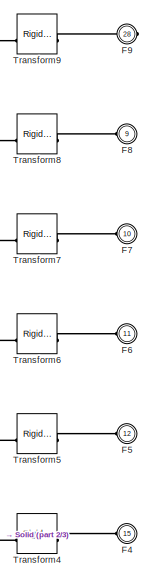
[diagram: TopView_1_RIGID - part 1/3, top right region]
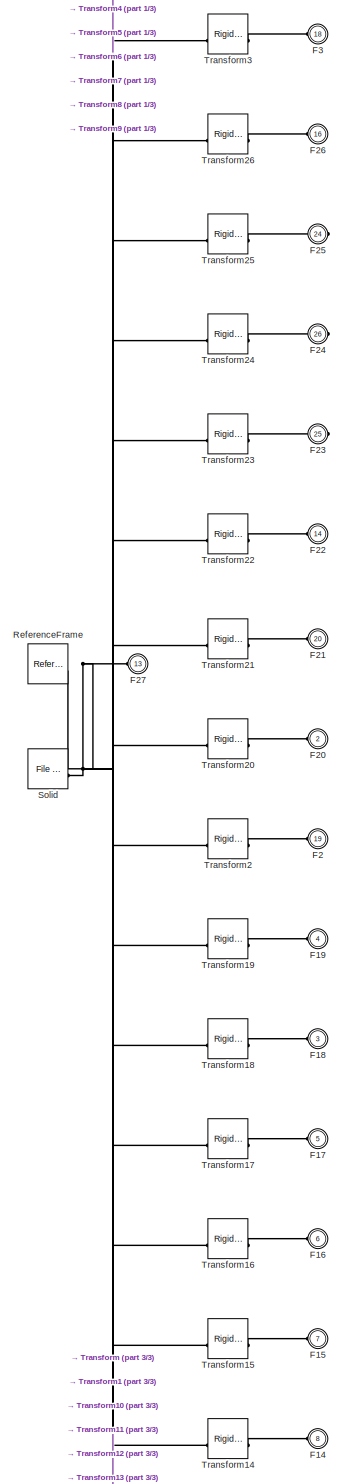
[diagram: TopView_1_RIGID - part 2/3, full width, middle band]
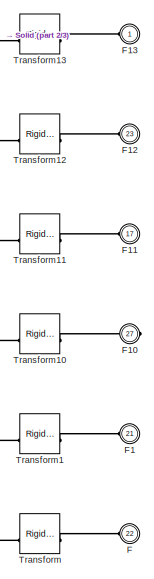
[diagram: TopView_1_RIGID - part 3/3, bottom right region]
BLOCK [SubSystem] TopView_1_RIGID
BLOCK [PMIOPort] TopView_1_RIGID/F
  Port = 22
  Side = Left
BLOCK [PMIOPort] TopView_1_RIGID/F1
  Port = 21
  Side = Left
BLOCK [PMIOPort] TopView_1_RIGID/F10
  Port = 27
  Side = Right
BLOCK [PMIOPort] TopView_1_RIGID/F11
  Port = 17
  Side = Left
BLOCK [PMIOPort] TopView_1_RIGID/F12
  Port = 23
  Side = Left
BLOCK [PMIOPort] TopView_1_RIGID/F13
  Side = Left
BLOCK [PMIOPort] TopView_1_RIGID/F14
  Port = 8
  Side = Left
BLOCK [PMIOPort] TopView_1_RIGID/F15
  Port = 7
  Side = Left
BLOCK [PMIOPort] TopView_1_RIGID/F16
  Port = 6
  Side = Left
BLOCK [PMIOPort] TopView_1_RIGID/F17
  Port = 5
  Side = Left
BLOCK [PMIOPort] TopView_1_RIGID/F18
  Port = 3
  Side = Left
BLOCK [PMIOPort] TopView_1_RIGID/F19
  Port = 4
  Side = Left
BLOCK [PMIOPort] TopView_1_RIGID/F2
  Port = 19
  Side = Left
BLOCK [PMIOPort] TopView_1_RIGID/F20
  Port = 2
  Side = Left
BLOCK [PMIOPort] TopView_1_RIGID/F21
  Port = 20
  Side = Left
BLOCK [PMIOPort] TopView_1_RIGID/F22
  Port = 14
  Side = Left
BLOCK [PMIOPort] TopView_1_RIGID/F23
  Port = 25
  Side = Right
BLOCK [PMIOPort] TopView_1_RIGID/F24
  Port = 26
  Side = Right
BLOCK [PMIOPort] TopView_1_RIGID/F25
  Port = 24
  Side = Right
BLOCK [PMIOPort] TopView_1_RIGID/F26
  Port = 16
  Side = Left
BLOCK [PMIOPort] TopView_1_RIGID/F27
  Port = 13
  Side = Left
BLOCK [PMIOPort] TopView_1_RIGID/F3
  Port = 18
  Side = Left
BLOCK [PMIOPort] TopView_1_RIGID/F4
  Port = 15
  Side = Left
BLOCK [PMIOPort] TopView_1_RIGID/F5
  Port = 12
  Side = Left
BLOCK [PMIOPort] TopView_1_RIGID/F6
  Port = 11
  Side = Left
BLOCK [PMIOPort] TopView_1_RIGID/F7
  Port = 10
  Side = Left
BLOCK [PMIOPort] TopView_1_RIGID/F8
  Port = 9
  Side = Left
BLOCK [PMIOPort] TopView_1_RIGID/F9
  Port = 28
  Side = Right
BLOCK [Reference] TopView_1_RIGID/ReferenceFrame  REF=sm_lib/Frames and
Transforms/Reference
Frame
  SourceBlock = sm_lib/Frames and\nTransforms/Reference\nFrame
  SourceType = Reference\nFrame
BLOCK [Reference] TopView_1_RIGID/Solid  REF=sm_lib/Body Elements/File Solid
  SourceBlock = sm_lib/Body Elements/File Solid
  SourceType = File Solid
BLOCK [Reference] TopView_1_RIGID/Transform  REF=sm_lib/Frames and
Transforms/Rigid
Transform
  SourceBlock = sm_lib/Frames and\nTransforms/Rigid\nTransform
  SourceType = Rigid\nTransform
BLOCK [Reference] TopView_1_RIGID/Transform1  REF=sm_lib/Frames and
Transforms/Rigid
Transform
  SourceBlock = sm_lib/Frames and\nTransforms/Rigid\nTransform
  SourceType = Rigid\nTransform
BLOCK [Reference] TopView_1_RIGID/Transform10  REF=sm_lib/Frames and
Transforms/Rigid
Transform
  SourceBlock = sm_lib/Frames and\nTransforms/Rigid\nTransform
  SourceType = Rigid\nTransform
BLOCK [Reference] TopView_1_RIGID/Transform11  REF=sm_lib/Frames and
Transforms/Rigid
Transform
  SourceBlock = sm_lib/Frames and\nTransforms/Rigid\nTransform
  SourceType = Rigid\nTransform
BLOCK [Reference] TopView_1_RIGID/Transform12  REF=sm_lib/Frames and
Transforms/Rigid
Transform
  SourceBlock = sm_lib/Frames and\nTransforms/Rigid\nTransform
  SourceType = Rigid\nTransform
BLOCK [Reference] TopView_1_RIGID/Transform13  REF=sm_lib/Frames and
Transforms/Rigid
Transform
  SourceBlock = sm_lib/Frames and\nTransforms/Rigid\nTransform
  SourceType = Rigid\nTransform
BLOCK [Reference] TopView_1_RIGID/Transform14  REF=sm_lib/Frames and
Transforms/Rigid
Transform
  SourceBlock = sm_lib/Frames and\nTransforms/Rigid\nTransform
  SourceType = Rigid\nTransform
BLOCK [Reference] TopView_1_RIGID/Transform15  REF=sm_lib/Frames and
Transforms/Rigid
Transform
  SourceBlock = sm_lib/Frames and\nTransforms/Rigid\nTransform
  SourceType = Rigid\nTransform
BLOCK [Reference] TopView_1_RIGID/Transform16  REF=sm_lib/Frames and
Transforms/Rigid
Transform
  SourceBlock = sm_lib/Frames and\nTransforms/Rigid\nTransform
  SourceType = Rigid\nTransform
BLOCK [Reference] TopView_1_RIGID/Transform17  REF=sm_lib/Frames and
Transforms/Rigid
Transform
  SourceBlock = sm_lib/Frames and\nTransforms/Rigid\nTransform
  SourceType = Rigid\nTransform
BLOCK [Reference] TopView_1_RIGID/Transform18  REF=sm_lib/Frames and
Transforms/Rigid
Transform
  SourceBlock = sm_lib/Frames and\nTransforms/Rigid\nTransform
  SourceType = Rigid\nTransform
BLOCK [Reference] TopView_1_RIGID/Transform19  REF=sm_lib/Frames and
Transforms/Rigid
Transform
  SourceBlock = sm_lib/Frames and\nTransforms/Rigid\nTransform
  SourceType = Rigid\nTransform
BLOCK [Reference] TopView_1_RIGID/Transform2  REF=sm_lib/Frames and
Transforms/Rigid
Transform
  SourceBlock = sm_lib/Frames and\nTransforms/Rigid\nTransform
  SourceType = Rigid\nTransform
BLOCK [Reference] TopView_1_RIGID/Transform20  REF=sm_lib/Frames and
Transforms/Rigid
Transform
  SourceBlock = sm_lib/Frames and\nTransforms/Rigid\nTransform
  SourceType = Rigid\nTransform
BLOCK [Reference] TopView_1_RIGID/Transform21  REF=sm_lib/Frames and
Transforms/Rigid
Transform
  SourceBlock = sm_lib/Frames and\nTransforms/Rigid\nTransform
  SourceType = Rigid\nTransform
BLOCK [Reference] TopView_1_RIGID/Transform22  REF=sm_lib/Frames and
Transforms/Rigid
Transform
  SourceBlock = sm_lib/Frames and\nTransforms/Rigid\nTransform
  SourceType = Rigid\nTransform
BLOCK [Reference] TopView_1_RIGID/Transform23  REF=sm_lib/Frames and
Transforms/Rigid
Transform
  SourceBlock = sm_lib/Frames and\nTransforms/Rigid\nTransform
  SourceType = Rigid\nTransform
BLOCK [Reference] TopView_1_RIGID/Transform24  REF=sm_lib/Frames and
Transforms/Rigid
Transform
  SourceBlock = sm_lib/Frames and\nTransforms/Rigid\nTransform
  SourceType = Rigid\nTransform
BLOCK [Reference] TopView_1_RIGID/Transform25  REF=sm_lib/Frames and
Transforms/Rigid
Transform
  SourceBlock = sm_lib/Frames and\nTransforms/Rigid\nTransform
  SourceType = Rigid\nTransform
BLOCK [Reference] TopView_1_RIGID/Transform26  REF=sm_lib/Frames and
Transforms/Rigid
Transform
  SourceBlock = sm_lib/Frames and\nTransforms/Rigid\nTransform
  SourceType = Rigid\nTransform
BLOCK [Reference] TopView_1_RIGID/Transform3  REF=sm_lib/Frames and
Transforms/Rigid
Transform
  SourceBlock = sm_lib/Frames and\nTransforms/Rigid\nTransform
  SourceType = Rigid\nTransform
BLOCK [Reference] TopView_1_RIGID/Transform4  REF=sm_lib/Frames and
Transforms/Rigid
Transform
  SourceBlock = sm_lib/Frames and\nTransforms/Rigid\nTransform
  SourceType = Rigid\nTransform
BLOCK [Reference] TopView_1_RIGID/Transform5  REF=sm_lib/Frames and
Transforms/Rigid
Transform
  SourceBlock = sm_lib/Frames and\nTransforms/Rigid\nTransform
  SourceType = Rigid\nTransform
BLOCK [Reference] TopView_1_RIGID/Transform6  REF=sm_lib/Frames and
Transforms/Rigid
Transform
  SourceBlock = sm_lib/Frames and\nTransforms/Rigid\nTransform
  SourceType = Rigid\nTransform
BLOCK [Reference] TopView_1_RIGID/Transform7  REF=sm_lib/Frames and
Transforms/Rigid
Transform
  SourceBlock = sm_lib/Frames and\nTransforms/Rigid\nTransform
  SourceType = Rigid\nTransform
BLOCK [Reference] TopView_1_RIGID/Transform8  REF=sm_lib/Frames and
Transforms/Rigid
Transform
  SourceBlock = sm_lib/Frames and\nTransforms/Rigid\nTransform
  SourceType = Rigid\nTransform
BLOCK [Reference] TopView_1_RIGID/Transform9  REF=sm_lib/Frames and
Transforms/Rigid
Transform
  SourceBlock = sm_lib/Frames and\nTransforms/Rigid\nTransform
  SourceType = Rigid\nTransform
BLOCK [Reference] Transform  REF=sm_lib/Frames and
Transforms/Rigid
Transform
  SourceBlock = sm_lib/Frames and\nTransforms/Rigid\nTransform
  SourceType = Rigid\nTransform
BLOCK [Reference] World  REF=sm_lib/Frames and
Transforms/World Frame
  SourceBlock = sm_lib/Frames and\nTransforms/World Frame
  SourceType = World Frame
BLOCK [SubSystem] wrist_1st_joint_1_RIGID
BLOCK [PMIOPort] wrist_1st_joint_1_RIGID/F
  Port = 2
  Side = Right
BLOCK [PMIOPort] wrist_1st_joint_1_RIGID/F1
  Side = Left
BLOCK [Reference] wrist_1st_joint_1_RIGID/ReferenceFrame  REF=sm_lib/Frames and
Transforms/Reference
Frame
  SourceBlock = sm_lib/Frames and\nTransforms/Reference\nFrame
  SourceType = Reference\nFrame
BLOCK [Reference] wrist_1st_joint_1_RIGID/Solid  REF=sm_lib/Body Elements/File Solid
  SourceBlock = sm_lib/Body Elements/File Solid
  SourceType = File Solid
BLOCK [Reference] wrist_1st_joint_1_RIGID/Transform  REF=sm_lib/Frames and
Transforms/Rigid
Transform
  SourceBlock = sm_lib/Frames and\nTransforms/Rigid\nTransform
  SourceType = Rigid\nTransform
BLOCK [Reference] wrist_1st_joint_1_RIGID/Transform1  REF=sm_lib/Frames and
Transforms/Rigid
Transform
  SourceBlock = sm_lib/Frames and\nTransforms/Rigid\nTransform
  SourceType = Rigid\nTransform
PLINE Arm1_8_1_RIGID/F1:RConn1 -- Arm1_8_1_RIGID/Transform1:RConn1
PLINE Arm1_8_1_RIGID/F2:RConn1 -- Arm1_8_1_RIGID/Transform2:RConn1
PLINE Arm1_8_1_RIGID/F:RConn1 -- Arm1_8_1_RIGID/Transform:RConn1
PNET net1: Arm1_8_1_RIGID/ReferenceFrame:RConn1 -- Arm1_8_1_RIGID/Solid:RConn1 -- Arm1_8_1_RIGID/Transform1:LConn1 -- Arm1_8_1_RIGID/Transform2:LConn1 -- Arm1_8_1_RIGID/Transform:LConn1
PLINE Arm1_8_1_RIGID:LConn1 -- Revolute14:RConn1
PLINE Arm1_8_1_RIGID:LConn2 -- Cylindrical:RConn1
PLINE Arm1_8_1_RIGID:LConn3 -- TopView_1_RIGID:LConn1
PLINE Arm1_8_2_RIGID/F1:RConn1 -- Arm1_8_2_RIGID/Transform1:RConn1
PLINE Arm1_8_2_RIGID/F2:RConn1 -- Arm1_8_2_RIGID/Transform2:RConn1
PLINE Arm1_8_2_RIGID/F:RConn1 -- Arm1_8_2_RIGID/Transform:RConn1
PNET net2: Arm1_8_2_RIGID/ReferenceFrame:RConn1 -- Arm1_8_2_RIGID/Solid:RConn1 -- Arm1_8_2_RIGID/Transform1:LConn1 -- Arm1_8_2_RIGID/Transform2:LConn1 -- Arm1_8_2_RIGID/Transform:LConn1
PLINE Arm1_8_2_RIGID:LConn1 -- Revolute24:RConn1
PLINE Arm1_8_2_RIGID:LConn2 -- Cylindrical3:RConn1
PLINE Arm1_8_2_RIGID:LConn3 -- TopView_1_RIGID:LConn8
PLINE Arm2_7_1_RIGID/F1:RConn1 -- Arm2_7_1_RIGID/Transform1:RConn1
PLINE Arm2_7_1_RIGID/F:RConn1 -- Arm2_7_1_RIGID/Transform:RConn1
PNET net3: Arm2_7_1_RIGID/ReferenceFrame:RConn1 -- Arm2_7_1_RIGID/Solid:RConn1 -- Arm2_7_1_RIGID/Transform1:LConn1 -- Arm2_7_1_RIGID/Transform:LConn1
PLINE Arm2_7_1_RIGID:LConn1 -- Tmotor_MN505S_Base_7_RIGID:LConn2
PLINE Arm2_7_1_RIGID:LConn2 -- TopView_1_RIGID:LConn7
PLINE Arm2_7_2_RIGID/F1:RConn1 -- Arm2_7_2_RIGID/Transform1:RConn1
PLINE Arm2_7_2_RIGID/F2:RConn1 -- Arm2_7_2_RIGID/Transform2:RConn1
PLINE Arm2_7_2_RIGID/F:RConn1 -- Arm2_7_2_RIGID/Transform:RConn1
PNET net4: Arm2_7_2_RIGID/ReferenceFrame:RConn1 -- Arm2_7_2_RIGID/Solid:RConn1 -- Arm2_7_2_RIGID/Transform1:LConn1 -- Arm2_7_2_RIGID/Transform2:LConn1 -- Arm2_7_2_RIGID/Transform:LConn1
PLINE Arm2_7_2_RIGID:LConn1 -- Revolute16:RConn1
PLINE Arm2_7_2_RIGID:LConn2 -- Cylindrical1:RConn1
PLINE Arm2_7_2_RIGID:LConn3 -- TopView_1_RIGID:LConn6
PLINE Arm3_6_1_RIGID/F1:RConn1 -- Arm3_6_1_RIGID/Transform1:RConn1
PLINE Arm3_6_1_RIGID/F:RConn1 -- Arm3_6_1_RIGID/Transform:RConn1
PNET net5: Arm3_6_1_RIGID/ReferenceFrame:RConn1 -- Arm3_6_1_RIGID/Solid:RConn1 -- Arm3_6_1_RIGID/Transform1:LConn1 -- Arm3_6_1_RIGID/Transform:LConn1
PLINE Arm3_6_1_RIGID:LConn1 -- Tmotor_MN505S_Base_6_RIGID:LConn2
PLINE Arm3_6_1_RIGID:LConn2 -- TopView_1_RIGID:LConn5
PLINE Arm3_6_2_RIGID/F1:RConn1 -- Arm3_6_2_RIGID/Transform1:RConn1
PLINE Arm3_6_2_RIGID/F2:RConn1 -- Arm3_6_2_RIGID/Transform2:RConn1
PLINE Arm3_6_2_RIGID/F:RConn1 -- Arm3_6_2_RIGID/Transform:RConn1
PNET net6: Arm3_6_2_RIGID/ReferenceFrame:RConn1 -- Arm3_6_2_RIGID/Solid:RConn1 -- Arm3_6_2_RIGID/Transform1:LConn1 -- Arm3_6_2_RIGID/Transform2:LConn1 -- Arm3_6_2_RIGID/Transform:LConn1
PLINE Arm3_6_2_RIGID:LConn1 -- Revolute18:RConn1
PLINE Arm3_6_2_RIGID:LConn2 -- Cylindrical2:RConn1
PLINE Arm3_6_2_RIGID:LConn3 -- TopView_1_RIGID:LConn3
PLINE Arm4_5_1_RIGID/F1:RConn1 -- Arm4_5_1_RIGID/Transform1:RConn1
PLINE Arm4_5_1_RIGID/F:RConn1 -- Arm4_5_1_RIGID/Transform:RConn1
PNET net7: Arm4_5_1_RIGID/ReferenceFrame:RConn1 -- Arm4_5_1_RIGID/Solid:RConn1 -- Arm4_5_1_RIGID/Transform1:LConn1 -- Arm4_5_1_RIGID/Transform:LConn1
PLINE Arm4_5_1_RIGID:LConn1 -- Tmotor_MN505S_Base_5_RIGID:LConn2
PLINE Arm4_5_1_RIGID:LConn2 -- TopView_1_RIGID:LConn4
PLINE Arm4_5_2_RIGID/F1:RConn1 -- Arm4_5_2_RIGID/Transform1:RConn1
PLINE Arm4_5_2_RIGID/F:RConn1 -- Arm4_5_2_RIGID/Transform:RConn1
PNET net8: Arm4_5_2_RIGID/ReferenceFrame:RConn1 -- Arm4_5_2_RIGID/Solid:RConn1 -- Arm4_5_2_RIGID/Transform1:LConn1 -- Arm4_5_2_RIGID/Transform:LConn1
PLINE Arm4_5_2_RIGID:LConn1 -- Tmotor_MN505S_Base_4_RIGID:LConn2
PLINE Arm4_5_2_RIGID:LConn2 -- TopView_1_RIGID:LConn2
PLINE Arm_1st_1_RIGID/F1:RConn1 -- Arm_1st_1_RIGID/Transform1:RConn1
PLINE Arm_1st_1_RIGID/F2:RConn1 -- Arm_1st_1_RIGID/Transform2:RConn1
PLINE Arm_1st_1_RIGID/F3:RConn1 -- Arm_1st_1_RIGID/Transform3:RConn1
PLINE Arm_1st_1_RIGID/F:RConn1 -- Arm_1st_1_RIGID/Transform:RConn1
PNET net9: Arm_1st_1_RIGID/ReferenceFrame:RConn1 -- Arm_1st_1_RIGID/Solid:RConn1 -- Arm_1st_1_RIGID/Transform1:LConn1 -- Arm_1st_1_RIGID/Transform2:LConn1 -- Arm_1st_1_RIGID/Transform3:LConn1 -- Arm_1st_1_RIGID/Transform:LConn1
PLINE Arm_1st_1_RIGID:LConn1 -- Servo_X20_7512_1_RIGID:LConn2
PLINE Arm_1st_1_RIGID:LConn2 -- Revolute11:RConn1
PLINE Arm_1st_1_RIGID:RConn1 -- Revolute10:LConn1
PLINE Arm_1st_1_RIGID:RConn2 -- Cylindrical4:LConn1
PLINE Arm_2nd_1_RIGID/F1:RConn1 -- Arm_2nd_1_RIGID/Transform1:RConn1
PLINE Arm_2nd_1_RIGID/F2:RConn1 -- Arm_2nd_1_RIGID/Transform2:RConn1
PLINE Arm_2nd_1_RIGID/F:RConn1 -- Arm_2nd_1_RIGID/Transform:RConn1
PNET net10: Arm_2nd_1_RIGID/ReferenceFrame:RConn1 -- Arm_2nd_1_RIGID/Solid:RConn1 -- Arm_2nd_1_RIGID/Transform1:LConn1 -- Arm_2nd_1_RIGID/Transform2:LConn1 -- Arm_2nd_1_RIGID/Transform:LConn1
PLINE Arm_2nd_1_RIGID:LConn1 -- Servo_D5545GS_1_RIGID:LConn1
PLINE Arm_2nd_1_RIGID:RConn1 -- Cylindrical5:LConn1
PLINE Arm_2nd_1_RIGID:RConn2 -- Revolute11:LConn1
PLINE Arm_Base_2_RIGID/F1:RConn1 -- Arm_Base_2_RIGID/Transform1:RConn1
PLINE Arm_Base_2_RIGID/F2:RConn1 -- Arm_Base_2_RIGID/Transform2:RConn1
PLINE Arm_Base_2_RIGID/F3:RConn1 -- Arm_Base_2_RIGID/Transform3:RConn1
PLINE Arm_Base_2_RIGID/F:RConn1 -- Arm_Base_2_RIGID/Transform:RConn1
PNET net11: Arm_Base_2_RIGID/ReferenceFrame:RConn1 -- Arm_Base_2_RIGID/Solid:RConn1 -- Arm_Base_2_RIGID/Transform1:LConn1 -- Arm_Base_2_RIGID/Transform2:LConn1 -- Arm_Base_2_RIGID/Transform3:LConn1 -- Arm_Base_2_RIGID/Transform:LConn1
PLINE Arm_Base_2_RIGID:LConn1 -- Revolute7:RConn1
PLINE Arm_Base_2_RIGID:LConn2 -- Revolute10:RConn1
PLINE Arm_Base_2_RIGID:LConn3 -- Servo_SSPS_105_1_RIGID:LConn1
PLINE Arm_Base_2_RIGID:RConn1 -- Revolute8:LConn1
PLINE Autopilot_1_RIGID/F1:RConn1 -- Autopilot_1_RIGID/Transform1:RConn1
PLINE Autopilot_1_RIGID/F2:RConn1 -- Autopilot_1_RIGID/Transform2:RConn1
PLINE Autopilot_1_RIGID/F3:RConn1 -- Autopilot_1_RIGID/Transform3:RConn1
PLINE Autopilot_1_RIGID/F:RConn1 -- Autopilot_1_RIGID/Transform:RConn1
PNET net12: Autopilot_1_RIGID/ReferenceFrame:RConn1 -- Autopilot_1_RIGID/Solid:RConn1 -- Autopilot_1_RIGID/Transform1:LConn1 -- Autopilot_1_RIGID/Transform2:LConn1 -- Autopilot_1_RIGID/Transform3:LConn1 -- Autopilot_1_RIGID/Transform:LConn1
PLINE Autopilot_1_RIGID:LConn1 -- Planar:RConn1
PLINE Autopilot_1_RIGID:LConn2 -- Planar5:RConn1
PLINE Autopilot_1_RIGID:RConn1 -- Planar6:LConn1
PLINE Autopilot_1_RIGID:RConn2 -- Planar8:LConn1
PLINE CamBase_1_RIGID/F1:RConn1 -- CamBase_1_RIGID/Transform1:RConn1
PLINE CamBase_1_RIGID/F2:RConn1 -- CamBase_1_RIGID/Transform2:RConn1
PLINE CamBase_1_RIGID/F:RConn1 -- CamBase_1_RIGID/Transform:RConn1
PNET net13: CamBase_1_RIGID/ReferenceFrame:RConn1 -- CamBase_1_RIGID/Solid:RConn1 -- CamBase_1_RIGID/Transform1:LConn1 -- CamBase_1_RIGID/Transform2:LConn1 -- CamBase_1_RIGID/Transform:LConn1
PLINE CamBase_1_RIGID:LConn1 -- Parallel:RConn1
PLINE CamBase_1_RIGID:LConn2 -- Cover_2_RIGID:LConn1
PLINE CamBase_1_RIGID:RConn1 -- Revolute12:LConn1
PLINE Cam_RP_Arm_1_RIGID/F1:RConn1 -- Cam_RP_Arm_1_RIGID/Transform1:RConn1
PLINE Cam_RP_Arm_1_RIGID/F:RConn1 -- Cam_RP_Arm_1_RIGID/Transform:RConn1
PNET net14: Cam_RP_Arm_1_RIGID/ReferenceFrame:RConn1 -- Cam_RP_Arm_1_RIGID/Solid:RConn1 -- Cam_RP_Arm_1_RIGID/Transform1:LConn1 -- Cam_RP_Arm_1_RIGID/Transform:LConn1
PLINE Cam_RP_Arm_1_RIGID:LConn1 -- Camera_1_RIGID:LConn1
PLINE Cam_RP_Arm_1_RIGID:RConn1 -- Revolute9:LConn1
PLINE Cam_YR_Arm_1_RIGID/F1:RConn1 -- Cam_YR_Arm_1_RIGID/Transform1:RConn1
PLINE Cam_YR_Arm_1_RIGID/F:RConn1 -- Cam_YR_Arm_1_RIGID/Transform:RConn1
PNET net15: Cam_YR_Arm_1_RIGID/ReferenceFrame:RConn1 -- Cam_YR_Arm_1_RIGID/Solid:RConn1 -- Cam_YR_Arm_1_RIGID/Transform1:LConn1 -- Cam_YR_Arm_1_RIGID/Transform:LConn1
PLINE Cam_YR_Arm_1_RIGID:LConn1 -- Revolute12:RConn1
PLINE Cam_YR_Arm_1_RIGID:LConn2 -- Revolute9:RConn1
PLINE Camera_1_RIGID/F:RConn1 -- Camera_1_RIGID/Transform:RConn1
PNET net16: Camera_1_RIGID/ReferenceFrame:RConn1 -- Camera_1_RIGID/Solid:RConn1 -- Camera_1_RIGID/Transform:LConn1
PLINE Cover_2_RIGID/F1:RConn1 -- Cover_2_RIGID/Transform1:RConn1
PLINE Cover_2_RIGID/F:RConn1 -- Cover_2_RIGID/Transform:RConn1
PNET net17: Cover_2_RIGID/ReferenceFrame:RConn1 -- Cover_2_RIGID/Solid:RConn1 -- Cover_2_RIGID/Transform1:LConn1 -- Cover_2_RIGID/Transform:LConn1
PLINE Cover_2_RIGID:LConn2 -- TopView_1_RIGID:LConn23
PLINE Cylindrical1:LConn1 -- Tmotor_MN505S_Skin_2_RIGID:RConn4
PLINE Cylindrical2:LConn1 -- Tmotor_MN505S_Skin_3_RIGID:RConn2
PLINE Cylindrical3:LConn1 -- Tmotor_MN505S_Skin_8_RIGID:RConn4
PLINE Cylindrical4:RConn1 -- Servo_SSPS_105_1_RIGID:LConn2
PLINE Cylindrical5:RConn1 -- Servo_X20_7512_1_RIGID:LConn1
PLINE Cylindrical6:LConn1 -- Tmotor_MN505S_Skin_2_RIGID:RConn1
PLINE Cylindrical6:RConn1 -- Prop_22_66_CCW_4_RIGID:LConn1
PLINE Cylindrical7:LConn1 -- Tmotor_MN505S_Skin_8_RIGID:RConn2
PLINE Cylindrical7:RConn1 -- Prop_22_66_CCW_7_RIGID:LConn2
PLINE Cylindrical:LConn1 -- Tmotor_MN505S_Skin_1_RIGID:RConn1
PLINE Device_1_RIGID/F:RConn1 -- Device_1_RIGID/Transform:RConn1
PNET net18: Device_1_RIGID/ReferenceFrame:RConn1 -- Device_1_RIGID/Solid:RConn1 -- Device_1_RIGID/Transform:LConn1
PLINE Device_1_RIGID:LConn1 -- TopView_1_RIGID:LConn22
PLINE FLAME_70A_6S_1_RIGID/F:RConn1 -- FLAME_70A_6S_1_RIGID/Transform:RConn1
PNET net19: FLAME_70A_6S_1_RIGID/ReferenceFrame:RConn1 -- FLAME_70A_6S_1_RIGID/Solid:RConn1 -- FLAME_70A_6S_1_RIGID/Transform:LConn1
PLINE FLAME_70A_6S_1_RIGID:LConn1 -- TopView_1_RIGID:LConn21
PLINE FLAME_70A_6S_2_RIGID/F:RConn1 -- FLAME_70A_6S_2_RIGID/Transform:RConn1
PNET net20: FLAME_70A_6S_2_RIGID/ReferenceFrame:RConn1 -- FLAME_70A_6S_2_RIGID/Solid:RConn1 -- FLAME_70A_6S_2_RIGID/Transform:LConn1
PLINE FLAME_70A_6S_2_RIGID:LConn1 -- TopView_1_RIGID:LConn19
PLINE FLAME_70A_6S_3_RIGID/F:RConn1 -- FLAME_70A_6S_3_RIGID/Transform:RConn1
PNET net21: FLAME_70A_6S_3_RIGID/ReferenceFrame:RConn1 -- FLAME_70A_6S_3_RIGID/Solid:RConn1 -- FLAME_70A_6S_3_RIGID/Transform:LConn1
PLINE FLAME_70A_6S_3_RIGID:LConn1 -- TopView_1_RIGID:LConn18
PLINE FLAME_70A_6S_4_RIGID/F:RConn1 -- FLAME_70A_6S_4_RIGID/Transform:RConn1
PNET net22: FLAME_70A_6S_4_RIGID/ReferenceFrame:RConn1 -- FLAME_70A_6S_4_RIGID/Solid:RConn1 -- FLAME_70A_6S_4_RIGID/Transform:LConn1
PLINE FLAME_70A_6S_4_RIGID:LConn1 -- TopView_1_RIGID:LConn15
PLINE FLAME_70A_6S_5_RIGID/F:RConn1 -- FLAME_70A_6S_5_RIGID/Transform:RConn1
PNET net23: FLAME_70A_6S_5_RIGID/ReferenceFrame:RConn1 -- FLAME_70A_6S_5_RIGID/Solid:RConn1 -- FLAME_70A_6S_5_RIGID/Transform:LConn1
PLINE FLAME_70A_6S_5_RIGID:LConn1 -- TopView_1_RIGID:LConn12
PLINE FLAME_70A_6S_6_RIGID/F:RConn1 -- FLAME_70A_6S_6_RIGID/Transform:RConn1
PNET net24: FLAME_70A_6S_6_RIGID/ReferenceFrame:RConn1 -- FLAME_70A_6S_6_RIGID/Solid:RConn1 -- FLAME_70A_6S_6_RIGID/Transform:LConn1
PLINE FLAME_70A_6S_6_RIGID:LConn1 -- TopView_1_RIGID:LConn11
PLINE FLAME_70A_6S_7_RIGID/F:RConn1 -- FLAME_70A_6S_7_RIGID/Transform:RConn1
PNET net25: FLAME_70A_6S_7_RIGID/ReferenceFrame:RConn1 -- FLAME_70A_6S_7_RIGID/Solid:RConn1 -- FLAME_70A_6S_7_RIGID/Transform:LConn1
PLINE FLAME_70A_6S_7_RIGID:LConn1 -- TopView_1_RIGID:LConn10
PLINE FLAME_70A_6S_8_RIGID/F:RConn1 -- FLAME_70A_6S_8_RIGID/Transform:RConn1
PNET net26: FLAME_70A_6S_8_RIGID/ReferenceFrame:RConn1 -- FLAME_70A_6S_8_RIGID/Solid:RConn1 -- FLAME_70A_6S_8_RIGID/Transform:LConn1
PLINE FLAME_70A_6S_8_RIGID:LConn1 -- TopView_1_RIGID:LConn9
PLINE IMU_1_RIGID/F1:RConn1 -- IMU_1_RIGID/Transform1:RConn1
PLINE IMU_1_RIGID/F2:RConn1 -- IMU_1_RIGID/Transform2:RConn1
PLINE IMU_1_RIGID/F:RConn1 -- IMU_1_RIGID/Transform:RConn1
PNET net27: IMU_1_RIGID/ReferenceFrame:RConn1 -- IMU_1_RIGID/Solid:RConn1 -- IMU_1_RIGID/Transform1:LConn1 -- IMU_1_RIGID/Transform2:LConn1 -- IMU_1_RIGID/Transform:LConn1
PLINE IMU_1_RIGID:LConn1 -- TopView_1_RIGID:LConn16
PLINE IMU_1_RIGID:LConn2 -- Planar8:RConn1
PLINE IMU_1_RIGID:RConn1 -- Prismatic2:LConn1
PNET net28: MechanismConfiguration:RConn1 -- Solver Configuration:RConn1 -- Transform:LConn1 -- World:RConn1
PLINE On_Board_Computer_1_RIGID/F1:RConn1 -- On_Board_Computer_1_RIGID/Transform1:RConn1
PLINE On_Board_Computer_1_RIGID/F2:RConn1 -- On_Board_Computer_1_RIGID/Transform2:RConn1
PLINE On_Board_Computer_1_RIGID/F3:RConn1 -- On_Board_Computer_1_RIGID/Transform3:RConn1
PLINE On_Board_Computer_1_RIGID/F:RConn1 -- On_Board_Computer_1_RIGID/Transform:RConn1
PNET net29: On_Board_Computer_1_RIGID/ReferenceFrame:RConn1 -- On_Board_Computer_1_RIGID/Solid:RConn1 -- On_Board_Computer_1_RIGID/Transform1:LConn1 -- On_Board_Computer_1_RIGID/Transform2:LConn1 -- On_Board_Computer_1_RIGID/Transform3:LConn1 -- On_Board_Computer_1_RIGID/Transform:LConn1
PLINE On_Board_Computer_1_RIGID:LConn1 -- TopView_1_RIGID:LConn17
PLINE On_Board_Computer_1_RIGID:LConn2 -- Prismatic2:RConn1
PLINE On_Board_Computer_1_RIGID:RConn1 -- Planar7:LConn1
PLINE On_Board_Computer_1_RIGID:RConn2 -- Planar5:LConn1
PLINE Parallel:LConn1 -- TopView_1_RIGID:RConn1
PLINE Planar10:LConn1 -- Tmotor_MN505S_Skin_8_RIGID:RConn1
PLINE Planar10:RConn1 -- Prop_22_66_CCW_8_RIGID:LConn1
PLINE Planar11:LConn1 -- Prop_22_66_CW_9_RIGID:RConn1
PLINE Planar11:RConn1 -- Prop_22_66_CW_10_RIGID:LConn1
PLINE Planar12:LConn1 -- Prop_22_66_CW_13_RIGID:RConn1
PLINE Planar12:RConn1 -- Prop_22_66_CW_14_RIGID:LConn1
PLINE Planar1:LConn1 -- TopView_1_RIGID:RConn2
PLINE Planar1:RConn1 -- TATTU_Semi_solid_17000mAh_5C_22_2V_6S1P_2_RIGID:LConn1
PLINE Planar2:LConn1 -- TopView_1_RIGID:RConn3
PLINE Planar2:RConn1 -- TATTU_Semi_solid_17000mAh_5C_22_2V_6S1P_3_RIGID:LConn1
PLINE Planar3:LConn1 -- Prop_22_66_CW_1_RIGID:RConn1
PLINE Planar3:RConn1 -- Prop_22_66_CW_2_RIGID:LConn1
PLINE Planar4:LConn1 -- Prop_22_66_CW_5_RIGID:RConn1
PLINE Planar4:RConn1 -- Prop_22_66_CW_6_RIGID:LConn1
PLINE Planar6:RConn1 -- TATTU_Semi_solid_17000mAh_5C_22_2V_6S1P_3_RIGID:LConn2
PLINE Planar7:RConn1 -- TATTU_Semi_solid_17000mAh_5C_22_2V_6S1P_1_RIGID:LConn3
PLINE Planar9:LConn1 -- Tmotor_MN505S_Skin_2_RIGID:RConn2
PLINE Planar9:RConn1 -- Prop_22_66_CCW_3_RIGID:LConn2
PLINE Planar:LConn1 -- TopView_1_RIGID:RConn4
PLINE Prismatic1:LConn1 -- TATTU_Semi_solid_17000mAh_5C_22_2V_6S1P_3_RIGID:RConn1
PLINE Prismatic1:RConn1 -- TATTU_Semi_solid_17000mAh_5C_22_2V_6S1P_1_RIGID:LConn2
PLINE Prismatic:LConn1 -- TATTU_Semi_solid_17000mAh_5C_22_2V_6S1P_1_RIGID:RConn1
PLINE Prismatic:RConn1 -- TATTU_Semi_solid_17000mAh_5C_22_2V_6S1P_2_RIGID:LConn2
PLINE Prob_1_RIGID/F:RConn1 -- Prob_1_RIGID/Transform:RConn1
PNET net30: Prob_1_RIGID/ReferenceFrame:RConn1 -- Prob_1_RIGID/Solid:RConn1 -- Prob_1_RIGID/Transform:LConn1
PLINE Prob_1_RIGID:LConn1 -- ProbrHolder_1_RIGID:LConn1
PLINE ProbrHolder_1_RIGID/F1:RConn1 -- ProbrHolder_1_RIGID/Transform1:RConn1
PLINE ProbrHolder_1_RIGID/F:RConn1 -- ProbrHolder_1_RIGID/Transform:RConn1
PNET net31: ProbrHolder_1_RIGID/ReferenceFrame:RConn1 -- ProbrHolder_1_RIGID/Solid:RConn1 -- ProbrHolder_1_RIGID/Transform1:LConn1 -- ProbrHolder_1_RIGID/Transform:LConn1
PLINE ProbrHolder_1_RIGID:LConn2 -- Revolute6:RConn1
PLINE Prop_22_66_CCW_1_RIGID/F1:RConn1 -- Prop_22_66_CCW_1_RIGID/Transform1:RConn1
PLINE Prop_22_66_CCW_1_RIGID/F:RConn1 -- Prop_22_66_CCW_1_RIGID/Transform:RConn1
PNET net32: Prop_22_66_CCW_1_RIGID/ReferenceFrame:RConn1 -- Prop_22_66_CCW_1_RIGID/Solid:RConn1 -- Prop_22_66_CCW_1_RIGID/Transform1:LConn1 -- Prop_22_66_CCW_1_RIGID/Transform:LConn1
PLINE Prop_22_66_CCW_1_RIGID:LConn1 -- Prop_22_66_CCW_2_RIGID:LConn1
PLINE Prop_22_66_CCW_1_RIGID:LConn2 -- Revolute25:RConn1
PLINE Prop_22_66_CCW_2_RIGID/F:RConn1 -- Prop_22_66_CCW_2_RIGID/Transform:RConn1
PNET net33: Prop_22_66_CCW_2_RIGID/ReferenceFrame:RConn1 -- Prop_22_66_CCW_2_RIGID/Solid:RConn1 -- Prop_22_66_CCW_2_RIGID/Transform:LConn1
PLINE Prop_22_66_CCW_3_RIGID/F1:RConn1 -- Prop_22_66_CCW_3_RIGID/Transform1:RConn1
PLINE Prop_22_66_CCW_3_RIGID/F:RConn1 -- Prop_22_66_CCW_3_RIGID/Transform:RConn1
PNET net34: Prop_22_66_CCW_3_RIGID/ReferenceFrame:RConn1 -- Prop_22_66_CCW_3_RIGID/Solid:RConn1 -- Prop_22_66_CCW_3_RIGID/Transform1:LConn1 -- Prop_22_66_CCW_3_RIGID/Transform:LConn1
PLINE Prop_22_66_CCW_3_RIGID:LConn1 -- Prop_22_66_CCW_4_RIGID:LConn2
PLINE Prop_22_66_CCW_4_RIGID/F1:RConn1 -- Prop_22_66_CCW_4_RIGID/Transform1:RConn1
PLINE Prop_22_66_CCW_4_RIGID/F:RConn1 -- Prop_22_66_CCW_4_RIGID/Transform:RConn1
PNET net35: Prop_22_66_CCW_4_RIGID/ReferenceFrame:RConn1 -- Prop_22_66_CCW_4_RIGID/Solid:RConn1 -- Prop_22_66_CCW_4_RIGID/Transform1:LConn1 -- Prop_22_66_CCW_4_RIGID/Transform:LConn1
PLINE Prop_22_66_CCW_5_RIGID/F:RConn1 -- Prop_22_66_CCW_5_RIGID/Transform:RConn1
PNET net36: Prop_22_66_CCW_5_RIGID/ReferenceFrame:RConn1 -- Prop_22_66_CCW_5_RIGID/Solid:RConn1 -- Prop_22_66_CCW_5_RIGID/Transform:LConn1
PLINE Prop_22_66_CCW_5_RIGID:LConn1 -- Prop_22_66_CCW_6_RIGID:LConn2
PLINE Prop_22_66_CCW_6_RIGID/F1:RConn1 -- Prop_22_66_CCW_6_RIGID/Transform1:RConn1
PLINE Prop_22_66_CCW_6_RIGID/F:RConn1 -- Prop_22_66_CCW_6_RIGID/Transform:RConn1
PNET net37: Prop_22_66_CCW_6_RIGID/ReferenceFrame:RConn1 -- Prop_22_66_CCW_6_RIGID/Solid:RConn1 -- Prop_22_66_CCW_6_RIGID/Transform1:LConn1 -- Prop_22_66_CCW_6_RIGID/Transform:LConn1
PLINE Prop_22_66_CCW_6_RIGID:LConn1 -- Revolute26:RConn1
PLINE Prop_22_66_CCW_7_RIGID/F1:RConn1 -- Prop_22_66_CCW_7_RIGID/Transform1:RConn1
PLINE Prop_22_66_CCW_7_RIGID/F:RConn1 -- Prop_22_66_CCW_7_RIGID/Transform:RConn1
PNET net38: Prop_22_66_CCW_7_RIGID/ReferenceFrame:RConn1 -- Prop_22_66_CCW_7_RIGID/Solid:RConn1 -- Prop_22_66_CCW_7_RIGID/Transform1:LConn1 -- Prop_22_66_CCW_7_RIGID/Transform:LConn1
PLINE Prop_22_66_CCW_7_RIGID:LConn1 -- Prop_22_66_CCW_8_RIGID:LConn2
PLINE Prop_22_66_CCW_8_RIGID/F1:RConn1 -- Prop_22_66_CCW_8_RIGID/Transform1:RConn1
PLINE Prop_22_66_CCW_8_RIGID/F:RConn1 -- Prop_22_66_CCW_8_RIGID/Transform:RConn1
PNET net39: Prop_22_66_CCW_8_RIGID/ReferenceFrame:RConn1 -- Prop_22_66_CCW_8_RIGID/Solid:RConn1 -- Prop_22_66_CCW_8_RIGID/Transform1:LConn1 -- Prop_22_66_CCW_8_RIGID/Transform:LConn1
PLINE Prop_22_66_CW_10_RIGID/F1:RConn1 -- Prop_22_66_CW_10_RIGID/Transform1:RConn1
PLINE Prop_22_66_CW_10_RIGID/F:RConn1 -- Prop_22_66_CW_10_RIGID/Transform:RConn1
PNET net40: Prop_22_66_CW_10_RIGID/ReferenceFrame:RConn1 -- Prop_22_66_CW_10_RIGID/Solid:RConn1 -- Prop_22_66_CW_10_RIGID/Transform1:LConn1 -- Prop_22_66_CW_10_RIGID/Transform:LConn1
PLINE Prop_22_66_CW_10_RIGID:LConn2 -- Revolute27:RConn1
PLINE Prop_22_66_CW_13_RIGID/F1:RConn1 -- Prop_22_66_CW_13_RIGID/Transform1:RConn1
PLINE Prop_22_66_CW_13_RIGID/F:RConn1 -- Prop_22_66_CW_13_RIGID/Transform:RConn1
PNET net41: Prop_22_66_CW_13_RIGID/ReferenceFrame:RConn1 -- Prop_22_66_CW_13_RIGID/Solid:RConn1 -- Prop_22_66_CW_13_RIGID/Transform1:LConn1 -- Prop_22_66_CW_13_RIGID/Transform:LConn1
PLINE Prop_22_66_CW_13_RIGID:RConn2 -- Revolute28:LConn1
PLINE Prop_22_66_CW_14_RIGID/F1:RConn1 -- Prop_22_66_CW_14_RIGID/Transform1:RConn1
PLINE Prop_22_66_CW_14_RIGID/F:RConn1 -- Prop_22_66_CW_14_RIGID/Transform:RConn1
PNET net42: Prop_22_66_CW_14_RIGID/ReferenceFrame:RConn1 -- Prop_22_66_CW_14_RIGID/Solid:RConn1 -- Prop_22_66_CW_14_RIGID/Transform1:LConn1 -- Prop_22_66_CW_14_RIGID/Transform:LConn1
PLINE Prop_22_66_CW_14_RIGID:LConn2 -- Revolute29:RConn1
PLINE Prop_22_66_CW_1_RIGID/F1:RConn1 -- Prop_22_66_CW_1_RIGID/Transform1:RConn1
PLINE Prop_22_66_CW_1_RIGID/F:RConn1 -- Prop_22_66_CW_1_RIGID/Transform:RConn1
PNET net43: Prop_22_66_CW_1_RIGID/ReferenceFrame:RConn1 -- Prop_22_66_CW_1_RIGID/Solid:RConn1 -- Prop_22_66_CW_1_RIGID/Transform1:LConn1 -- Prop_22_66_CW_1_RIGID/Transform:LConn1
PLINE Prop_22_66_CW_1_RIGID:RConn2 -- Revolute:LConn1
PLINE Prop_22_66_CW_2_RIGID/F1:RConn1 -- Prop_22_66_CW_2_RIGID/Transform1:RConn1
PLINE Prop_22_66_CW_2_RIGID/F:RConn1 -- Prop_22_66_CW_2_RIGID/Transform:RConn1
PNET net44: Prop_22_66_CW_2_RIGID/ReferenceFrame:RConn1 -- Prop_22_66_CW_2_RIGID/Solid:RConn1 -- Prop_22_66_CW_2_RIGID/Transform1:LConn1 -- Prop_22_66_CW_2_RIGID/Transform:LConn1
PLINE Prop_22_66_CW_2_RIGID:LConn2 -- Revolute1:RConn1
PLINE Prop_22_66_CW_5_RIGID/F1:RConn1 -- Prop_22_66_CW_5_RIGID/Transform1:RConn1
PLINE Prop_22_66_CW_5_RIGID/F:RConn1 -- Prop_22_66_CW_5_RIGID/Transform:RConn1
PNET net45: Prop_22_66_CW_5_RIGID/ReferenceFrame:RConn1 -- Prop_22_66_CW_5_RIGID/Solid:RConn1 -- Prop_22_66_CW_5_RIGID/Transform1:LConn1 -- Prop_22_66_CW_5_RIGID/Transform:LConn1
PLINE Prop_22_66_CW_5_RIGID:RConn2 -- Revolute2:LConn1
PLINE Prop_22_66_CW_6_RIGID/F1:RConn1 -- Prop_22_66_CW_6_RIGID/Transform1:RConn1
PLINE Prop_22_66_CW_6_RIGID/F:RConn1 -- Prop_22_66_CW_6_RIGID/Transform:RConn1
PNET net46: Prop_22_66_CW_6_RIGID/ReferenceFrame:RConn1 -- Prop_22_66_CW_6_RIGID/Solid:RConn1 -- Prop_22_66_CW_6_RIGID/Transform1:LConn1 -- Prop_22_66_CW_6_RIGID/Transform:LConn1
PLINE Prop_22_66_CW_6_RIGID:LConn2 -- Revolute3:RConn1
PLINE Prop_22_66_CW_9_RIGID/F1:RConn1 -- Prop_22_66_CW_9_RIGID/Transform1:RConn1
PLINE Prop_22_66_CW_9_RIGID/F:RConn1 -- Prop_22_66_CW_9_RIGID/Transform:RConn1
PNET net47: Prop_22_66_CW_9_RIGID/ReferenceFrame:RConn1 -- Prop_22_66_CW_9_RIGID/Solid:RConn1 -- Prop_22_66_CW_9_RIGID/Transform1:LConn1 -- Prop_22_66_CW_9_RIGID/Transform:LConn1
PLINE Prop_22_66_CW_9_RIGID:RConn2 -- Revolute4:LConn1
PLINE Revolute13:LConn1 -- Tmotor_MN505S_Base_1_RIGID:RConn2
PLINE Revolute13:RConn1 -- Tmotor_MN505S_Skin_1_RIGID:LConn1
PLINE Revolute14:LConn1 -- Tmotor_MN505S_Base_1_RIGID:RConn1
PLINE Revolute15:LConn1 -- Tmotor_MN505S_Skin_2_RIGID:RConn3
PLINE Revolute15:RConn1 -- Tmotor_MN505S_Base_2_RIGID:LConn1
PLINE Revolute16:LConn1 -- Tmotor_MN505S_Base_2_RIGID:RConn1
PLINE Revolute17:LConn1 -- Tmotor_MN505S_Skin_3_RIGID:RConn1
PLINE Revolute17:RConn1 -- Tmotor_MN505S_Base_3_RIGID:LConn1
PLINE Revolute18:LConn1 -- Tmotor_MN505S_Base_3_RIGID:RConn1
PLINE Revolute19:LConn1 -- Tmotor_MN505S_Skin_4_RIGID:RConn2
PLINE Revolute19:RConn1 -- Tmotor_MN505S_Base_4_RIGID:LConn1
PLINE Revolute1:LConn1 -- Tmotor_MN505S_Skin_1_RIGID:RConn2
PLINE Revolute20:LConn1 -- Tmotor_MN505S_Skin_5_RIGID:RConn2
PLINE Revolute20:RConn1 -- Tmotor_MN505S_Base_5_RIGID:LConn1
PLINE Revolute21:LConn1 -- Tmotor_MN505S_Skin_6_RIGID:RConn2
PLINE Revolute21:RConn1 -- Tmotor_MN505S_Base_6_RIGID:LConn1
PLINE Revolute22:LConn1 -- Tmotor_MN505S_Skin_7_RIGID:RConn2
PLINE Revolute22:RConn1 -- Tmotor_MN505S_Base_7_RIGID:LConn1
PLINE Revolute23:LConn1 -- Tmotor_MN505S_Skin_8_RIGID:RConn3
PLINE Revolute23:RConn1 -- Tmotor_MN505S_Base_8_RIGID:LConn1
PLINE Revolute24:LConn1 -- Tmotor_MN505S_Base_8_RIGID:RConn1
PLINE Revolute25:LConn1 -- Tmotor_MN505S_Skin_4_RIGID:RConn1
PLINE Revolute26:LConn1 -- Tmotor_MN505S_Skin_6_RIGID:RConn1
PLINE Revolute27:LConn1 -- Tmotor_MN505S_Skin_5_RIGID:RConn1
PLINE Revolute28:RConn1 -- Tmotor_MN505S_Skin_7_RIGID:LConn1
PLINE Revolute29:LConn1 -- Tmotor_MN505S_Skin_7_RIGID:RConn1
PLINE Revolute2:RConn1 -- Tmotor_MN505S_Skin_3_RIGID:LConn1
PLINE Revolute3:LConn1 -- Tmotor_MN505S_Skin_3_RIGID:RConn3
PLINE Revolute4:RConn1 -- Tmotor_MN505S_Skin_5_RIGID:LConn1
PLINE Revolute5:LConn1 -- wrist_1st_joint_1_RIGID:RConn1
PLINE Revolute5:RConn1 -- Servo_D5545GS_1_RIGID:LConn2
PLINE Revolute6:LConn1 -- Servo_D5545GS_3_RIGID:RConn1
PLINE Revolute7:LConn1 -- TopView_1_RIGID:RConn5
PLINE Revolute8:RConn1 -- Servo_PGS_CX_II_1_RIGID:LConn2
PLINE Revolute:RConn1 -- Tmotor_MN505S_Skin_1_RIGID:LConn2
PLINE Servo_D5545GS_1_RIGID/F1:RConn1 -- Servo_D5545GS_1_RIGID/Transform1:RConn1
PLINE Servo_D5545GS_1_RIGID/F:RConn1 -- Servo_D5545GS_1_RIGID/Transform:RConn1
PNET net48: Servo_D5545GS_1_RIGID/ReferenceFrame:RConn1 -- Servo_D5545GS_1_RIGID/Solid:RConn1 -- Servo_D5545GS_1_RIGID/Transform1:LConn1 -- Servo_D5545GS_1_RIGID/Transform:LConn1
PLINE Servo_D5545GS_3_RIGID/F1:RConn1 -- Servo_D5545GS_3_RIGID/Transform1:RConn1
PLINE Servo_D5545GS_3_RIGID/F:RConn1 -- Servo_D5545GS_3_RIGID/Transform:RConn1
PNET net49: Servo_D5545GS_3_RIGID/ReferenceFrame:RConn1 -- Servo_D5545GS_3_RIGID/Solid:RConn1 -- Servo_D5545GS_3_RIGID/Transform1:LConn1 -- Servo_D5545GS_3_RIGID/Transform:LConn1
PLINE Servo_D5545GS_3_RIGID:LConn1 -- wrist_1st_joint_1_RIGID:LConn1
PLINE Servo_PGS_CX_II_1_RIGID/F1:RConn1 -- Servo_PGS_CX_II_1_RIGID/Transform1:RConn1
PLINE Servo_PGS_CX_II_1_RIGID/F:RConn1 -- Servo_PGS_CX_II_1_RIGID/Transform:RConn1
PNET net50: Servo_PGS_CX_II_1_RIGID/ReferenceFrame:RConn1 -- Servo_PGS_CX_II_1_RIGID/Solid:RConn1 -- Servo_PGS_CX_II_1_RIGID/Transform1:LConn1 -- Servo_PGS_CX_II_1_RIGID/Transform:LConn1
PLINE Servo_PGS_CX_II_1_RIGID:LConn1 -- TopView_1_RIGID:LConn20
PLINE Servo_SSPS_105_1_RIGID/F1:RConn1 -- Servo_SSPS_105_1_RIGID/Transform1:RConn1
PLINE Servo_SSPS_105_1_RIGID/F:RConn1 -- Servo_SSPS_105_1_RIGID/Transform:RConn1
PNET net51: Servo_SSPS_105_1_RIGID/ReferenceFrame:RConn1 -- Servo_SSPS_105_1_RIGID/Solid:RConn1 -- Servo_SSPS_105_1_RIGID/Transform1:LConn1 -- Servo_SSPS_105_1_RIGID/Transform:LConn1
PLINE Servo_X20_7512_1_RIGID/F1:RConn1 -- Servo_X20_7512_1_RIGID/Transform1:RConn1
PLINE Servo_X20_7512_1_RIGID/F:RConn1 -- Servo_X20_7512_1_RIGID/Transform:RConn1
PNET net52: Servo_X20_7512_1_RIGID/ReferenceFrame:RConn1 -- Servo_X20_7512_1_RIGID/Solid:RConn1 -- Servo_X20_7512_1_RIGID/Transform1:LConn1 -- Servo_X20_7512_1_RIGID/Transform:LConn1
PLINE SixDOF:LConn1 -- Transform:RConn1
PLINE SixDOF:RConn1 -- TopView_1_RIGID:LConn13
PLINE TATTU_Semi_solid_17000mAh_5C_22_2V_6S1P_1_RIGID/F1:RConn1 -- TATTU_Semi_solid_17000mAh_5C_22_2V_6S1P_1_RIGID/Transform1:RConn1
PLINE TATTU_Semi_solid_17000mAh_5C_22_2V_6S1P_1_RIGID/F2:RConn1 -- TATTU_Semi_solid_17000mAh_5C_22_2V_6S1P_1_RIGID/Transform2:RConn1
PLINE TATTU_Semi_solid_17000mAh_5C_22_2V_6S1P_1_RIGID/F3:RConn1 -- TATTU_Semi_solid_17000mAh_5C_22_2V_6S1P_1_RIGID/Transform3:RConn1
PLINE TATTU_Semi_solid_17000mAh_5C_22_2V_6S1P_1_RIGID/F:RConn1 -- TATTU_Semi_solid_17000mAh_5C_22_2V_6S1P_1_RIGID/Transform:RConn1
PNET net53: TATTU_Semi_solid_17000mAh_5C_22_2V_6S1P_1_RIGID/ReferenceFrame:RConn1 -- TATTU_Semi_solid_17000mAh_5C_22_2V_6S1P_1_RIGID/Solid:RConn1 -- TATTU_Semi_solid_17000mAh_5C_22_2V_6S1P_1_RIGID/Transform1:LConn1 -- TATTU_Semi_solid_17000mAh_5C_22_2V_6S1P_1_RIGID/Transform2:LConn1 -- TATTU_Semi_solid_17000mAh_5C_22_2V_6S1P_1_RIGID/Transform3:LConn1 -- TATTU_Semi_solid_17000mAh_5C_22_2V_6S1P_1_RIGID/Transform:LConn1
PLINE TATTU_Semi_solid_17000mAh_5C_22_2V_6S1P_1_RIGID:LConn1 -- TopView_1_RIGID:LConn14
PLINE TATTU_Semi_solid_17000mAh_5C_22_2V_6S1P_2_RIGID/F1:RConn1 -- TATTU_Semi_solid_17000mAh_5C_22_2V_6S1P_2_RIGID/Transform1:RConn1
PLINE TATTU_Semi_solid_17000mAh_5C_22_2V_6S1P_2_RIGID/F:RConn1 -- TATTU_Semi_solid_17000mAh_5C_22_2V_6S1P_2_RIGID/Transform:RConn1
PNET net54: TATTU_Semi_solid_17000mAh_5C_22_2V_6S1P_2_RIGID/ReferenceFrame:RConn1 -- TATTU_Semi_solid_17000mAh_5C_22_2V_6S1P_2_RIGID/Solid:RConn1 -- TATTU_Semi_solid_17000mAh_5C_22_2V_6S1P_2_RIGID/Transform1:LConn1 -- TATTU_Semi_solid_17000mAh_5C_22_2V_6S1P_2_RIGID/Transform:LConn1
PLINE TATTU_Semi_solid_17000mAh_5C_22_2V_6S1P_3_RIGID/F1:RConn1 -- TATTU_Semi_solid_17000mAh_5C_22_2V_6S1P_3_RIGID/Transform1:RConn1
PLINE TATTU_Semi_solid_17000mAh_5C_22_2V_6S1P_3_RIGID/F2:RConn1 -- TATTU_Semi_solid_17000mAh_5C_22_2V_6S1P_3_RIGID/Transform2:RConn1
PLINE TATTU_Semi_solid_17000mAh_5C_22_2V_6S1P_3_RIGID/F:RConn1 -- TATTU_Semi_solid_17000mAh_5C_22_2V_6S1P_3_RIGID/Transform:RConn1
PNET net55: TATTU_Semi_solid_17000mAh_5C_22_2V_6S1P_3_RIGID/ReferenceFrame:RConn1 -- TATTU_Semi_solid_17000mAh_5C_22_2V_6S1P_3_RIGID/Solid:RConn1 -- TATTU_Semi_solid_17000mAh_5C_22_2V_6S1P_3_RIGID/Transform1:LConn1 -- TATTU_Semi_solid_17000mAh_5C_22_2V_6S1P_3_RIGID/Transform2:LConn1 -- TATTU_Semi_solid_17000mAh_5C_22_2V_6S1P_3_RIGID/Transform:LConn1
PLINE Tmotor_MN505S_Base_1_RIGID/F1:RConn1 -- Tmotor_MN505S_Base_1_RIGID/Transform1:RConn1
PLINE Tmotor_MN505S_Base_1_RIGID/F:RConn1 -- Tmotor_MN505S_Base_1_RIGID/Transform:RConn1
PNET net56: Tmotor_MN505S_Base_1_RIGID/ReferenceFrame:RConn1 -- Tmotor_MN505S_Base_1_RIGID/Solid:RConn1 -- Tmotor_MN505S_Base_1_RIGID/Transform1:LConn1 -- Tmotor_MN505S_Base_1_RIGID/Transform:LConn1
PLINE Tmotor_MN505S_Base_2_RIGID/F1:RConn1 -- Tmotor_MN505S_Base_2_RIGID/Transform1:RConn1
PLINE Tmotor_MN505S_Base_2_RIGID/F:RConn1 -- Tmotor_MN505S_Base_2_RIGID/Transform:RConn1
PNET net57: Tmotor_MN505S_Base_2_RIGID/ReferenceFrame:RConn1 -- Tmotor_MN505S_Base_2_RIGID/Solid:RConn1 -- Tmotor_MN505S_Base_2_RIGID/Transform1:LConn1 -- Tmotor_MN505S_Base_2_RIGID/Transform:LConn1
PLINE Tmotor_MN505S_Base_3_RIGID/F1:RConn1 -- Tmotor_MN505S_Base_3_RIGID/Transform1:RConn1
PLINE Tmotor_MN505S_Base_3_RIGID/F:RConn1 -- Tmotor_MN505S_Base_3_RIGID/Transform:RConn1
PNET net58: Tmotor_MN505S_Base_3_RIGID/ReferenceFrame:RConn1 -- Tmotor_MN505S_Base_3_RIGID/Solid:RConn1 -- Tmotor_MN505S_Base_3_RIGID/Transform1:LConn1 -- Tmotor_MN505S_Base_3_RIGID/Transform:LConn1
PLINE Tmotor_MN505S_Base_4_RIGID/F1:RConn1 -- Tmotor_MN505S_Base_4_RIGID/Transform1:RConn1
PLINE Tmotor_MN505S_Base_4_RIGID/F:RConn1 -- Tmotor_MN505S_Base_4_RIGID/Transform:RConn1
PNET net59: Tmotor_MN505S_Base_4_RIGID/ReferenceFrame:RConn1 -- Tmotor_MN505S_Base_4_RIGID/Solid:RConn1 -- Tmotor_MN505S_Base_4_RIGID/Transform1:LConn1 -- Tmotor_MN505S_Base_4_RIGID/Transform:LConn1
PLINE Tmotor_MN505S_Base_5_RIGID/F1:RConn1 -- Tmotor_MN505S_Base_5_RIGID/Transform1:RConn1
PLINE Tmotor_MN505S_Base_5_RIGID/F:RConn1 -- Tmotor_MN505S_Base_5_RIGID/Transform:RConn1
PNET net60: Tmotor_MN505S_Base_5_RIGID/ReferenceFrame:RConn1 -- Tmotor_MN505S_Base_5_RIGID/Solid:RConn1 -- Tmotor_MN505S_Base_5_RIGID/Transform1:LConn1 -- Tmotor_MN505S_Base_5_RIGID/Transform:LConn1
PLINE Tmotor_MN505S_Base_6_RIGID/F1:RConn1 -- Tmotor_MN505S_Base_6_RIGID/Transform1:RConn1
PLINE Tmotor_MN505S_Base_6_RIGID/F:RConn1 -- Tmotor_MN505S_Base_6_RIGID/Transform:RConn1
PNET net61: Tmotor_MN505S_Base_6_RIGID/ReferenceFrame:RConn1 -- Tmotor_MN505S_Base_6_RIGID/Solid:RConn1 -- Tmotor_MN505S_Base_6_RIGID/Transform1:LConn1 -- Tmotor_MN505S_Base_6_RIGID/Transform:LConn1
PLINE Tmotor_MN505S_Base_7_RIGID/F1:RConn1 -- Tmotor_MN505S_Base_7_RIGID/Transform1:RConn1
PLINE Tmotor_MN505S_Base_7_RIGID/F:RConn1 -- Tmotor_MN505S_Base_7_RIGID/Transform:RConn1
PNET net62: Tmotor_MN505S_Base_7_RIGID/ReferenceFrame:RConn1 -- Tmotor_MN505S_Base_7_RIGID/Solid:RConn1 -- Tmotor_MN505S_Base_7_RIGID/Transform1:LConn1 -- Tmotor_MN505S_Base_7_RIGID/Transform:LConn1
PLINE Tmotor_MN505S_Base_8_RIGID/F1:RConn1 -- Tmotor_MN505S_Base_8_RIGID/Transform1:RConn1
PLINE Tmotor_MN505S_Base_8_RIGID/F:RConn1 -- Tmotor_MN505S_Base_8_RIGID/Transform:RConn1
PNET net63: Tmotor_MN505S_Base_8_RIGID/ReferenceFrame:RConn1 -- Tmotor_MN505S_Base_8_RIGID/Solid:RConn1 -- Tmotor_MN505S_Base_8_RIGID/Transform1:LConn1 -- Tmotor_MN505S_Base_8_RIGID/Transform:LConn1
PLINE Tmotor_MN505S_Skin_1_RIGID/F1:RConn1 -- Tmotor_MN505S_Skin_1_RIGID/Transform1:RConn1
PLINE Tmotor_MN505S_Skin_1_RIGID/F2:RConn1 -- Tmotor_MN505S_Skin_1_RIGID/Transform2:RConn1
PLINE Tmotor_MN505S_Skin_1_RIGID/F3:RConn1 -- Tmotor_MN505S_Skin_1_RIGID/Transform3:RConn1
PLINE Tmotor_MN505S_Skin_1_RIGID/F:RConn1 -- Tmotor_MN505S_Skin_1_RIGID/Transform:RConn1
PNET net64: Tmotor_MN505S_Skin_1_RIGID/ReferenceFrame:RConn1 -- Tmotor_MN505S_Skin_1_RIGID/Solid:RConn1 -- Tmotor_MN505S_Skin_1_RIGID/Transform1:LConn1 -- Tmotor_MN505S_Skin_1_RIGID/Transform2:LConn1 -- Tmotor_MN505S_Skin_1_RIGID/Transform3:LConn1 -- Tmotor_MN505S_Skin_1_RIGID/Transform:LConn1
PLINE Tmotor_MN505S_Skin_2_RIGID/F1:RConn1 -- Tmotor_MN505S_Skin_2_RIGID/Transform1:RConn1
PLINE Tmotor_MN505S_Skin_2_RIGID/F2:RConn1 -- Tmotor_MN505S_Skin_2_RIGID/Transform2:RConn1
PLINE Tmotor_MN505S_Skin_2_RIGID/F3:RConn1 -- Tmotor_MN505S_Skin_2_RIGID/Transform3:RConn1
PLINE Tmotor_MN505S_Skin_2_RIGID/F:RConn1 -- Tmotor_MN505S_Skin_2_RIGID/Transform:RConn1
PNET net65: Tmotor_MN505S_Skin_2_RIGID/ReferenceFrame:RConn1 -- Tmotor_MN505S_Skin_2_RIGID/Solid:RConn1 -- Tmotor_MN505S_Skin_2_RIGID/Transform1:LConn1 -- Tmotor_MN505S_Skin_2_RIGID/Transform2:LConn1 -- Tmotor_MN505S_Skin_2_RIGID/Transform3:LConn1 -- Tmotor_MN505S_Skin_2_RIGID/Transform:LConn1
PLINE Tmotor_MN505S_Skin_3_RIGID/F1:RConn1 -- Tmotor_MN505S_Skin_3_RIGID/Transform1:RConn1
PLINE Tmotor_MN505S_Skin_3_RIGID/F2:RConn1 -- Tmotor_MN505S_Skin_3_RIGID/Transform2:RConn1
PLINE Tmotor_MN505S_Skin_3_RIGID/F3:RConn1 -- Tmotor_MN505S_Skin_3_RIGID/Transform3:RConn1
PLINE Tmotor_MN505S_Skin_3_RIGID/F:RConn1 -- Tmotor_MN505S_Skin_3_RIGID/Transform:RConn1
PNET net66: Tmotor_MN505S_Skin_3_RIGID/ReferenceFrame:RConn1 -- Tmotor_MN505S_Skin_3_RIGID/Solid:RConn1 -- Tmotor_MN505S_Skin_3_RIGID/Transform1:LConn1 -- Tmotor_MN505S_Skin_3_RIGID/Transform2:LConn1 -- Tmotor_MN505S_Skin_3_RIGID/Transform3:LConn1 -- Tmotor_MN505S_Skin_3_RIGID/Transform:LConn1
PLINE Tmotor_MN505S_Skin_4_RIGID/F1:RConn1 -- Tmotor_MN505S_Skin_4_RIGID/Transform1:RConn1
PLINE Tmotor_MN505S_Skin_4_RIGID/F:RConn1 -- Tmotor_MN505S_Skin_4_RIGID/Transform:RConn1
PNET net67: Tmotor_MN505S_Skin_4_RIGID/ReferenceFrame:RConn1 -- Tmotor_MN505S_Skin_4_RIGID/Solid:RConn1 -- Tmotor_MN505S_Skin_4_RIGID/Transform1:LConn1 -- Tmotor_MN505S_Skin_4_RIGID/Transform:LConn1
PLINE Tmotor_MN505S_Skin_5_RIGID/F1:RConn1 -- Tmotor_MN505S_Skin_5_RIGID/Transform1:RConn1
PLINE Tmotor_MN505S_Skin_5_RIGID/F2:RConn1 -- Tmotor_MN505S_Skin_5_RIGID/Transform2:RConn1
PLINE Tmotor_MN505S_Skin_5_RIGID/F:RConn1 -- Tmotor_MN505S_Skin_5_RIGID/Transform:RConn1
PNET net68: Tmotor_MN505S_Skin_5_RIGID/ReferenceFrame:RConn1 -- Tmotor_MN505S_Skin_5_RIGID/Solid:RConn1 -- Tmotor_MN505S_Skin_5_RIGID/Transform1:LConn1 -- Tmotor_MN505S_Skin_5_RIGID/Transform2:LConn1 -- Tmotor_MN505S_Skin_5_RIGID/Transform:LConn1
PLINE Tmotor_MN505S_Skin_6_RIGID/F1:RConn1 -- Tmotor_MN505S_Skin_6_RIGID/Transform1:RConn1
PLINE Tmotor_MN505S_Skin_6_RIGID/F:RConn1 -- Tmotor_MN505S_Skin_6_RIGID/Transform:RConn1
PNET net69: Tmotor_MN505S_Skin_6_RIGID/ReferenceFrame:RConn1 -- Tmotor_MN505S_Skin_6_RIGID/Solid:RConn1 -- Tmotor_MN505S_Skin_6_RIGID/Transform1:LConn1 -- Tmotor_MN505S_Skin_6_RIGID/Transform:LConn1
PLINE Tmotor_MN505S_Skin_7_RIGID/F1:RConn1 -- Tmotor_MN505S_Skin_7_RIGID/Transform1:RConn1
PLINE Tmotor_MN505S_Skin_7_RIGID/F2:RConn1 -- Tmotor_MN505S_Skin_7_RIGID/Transform2:RConn1
PLINE Tmotor_MN505S_Skin_7_RIGID/F:RConn1 -- Tmotor_MN505S_Skin_7_RIGID/Transform:RConn1
PNET net70: Tmotor_MN505S_Skin_7_RIGID/ReferenceFrame:RConn1 -- Tmotor_MN505S_Skin_7_RIGID/Solid:RConn1 -- Tmotor_MN505S_Skin_7_RIGID/Transform1:LConn1 -- Tmotor_MN505S_Skin_7_RIGID/Transform2:LConn1 -- Tmotor_MN505S_Skin_7_RIGID/Transform:LConn1
PLINE Tmotor_MN505S_Skin_8_RIGID/F1:RConn1 -- Tmotor_MN505S_Skin_8_RIGID/Transform1:RConn1
PLINE Tmotor_MN505S_Skin_8_RIGID/F2:RConn1 -- Tmotor_MN505S_Skin_8_RIGID/Transform2:RConn1
PLINE Tmotor_MN505S_Skin_8_RIGID/F3:RConn1 -- Tmotor_MN505S_Skin_8_RIGID/Transform3:RConn1
PLINE Tmotor_MN505S_Skin_8_RIGID/F:RConn1 -- Tmotor_MN505S_Skin_8_RIGID/Transform:RConn1
PNET net71: Tmotor_MN505S_Skin_8_RIGID/ReferenceFrame:RConn1 -- Tmotor_MN505S_Skin_8_RIGID/Solid:RConn1 -- Tmotor_MN505S_Skin_8_RIGID/Transform1:LConn1 -- Tmotor_MN505S_Skin_8_RIGID/Transform2:LConn1 -- Tmotor_MN505S_Skin_8_RIGID/Transform3:LConn1 -- Tmotor_MN505S_Skin_8_RIGID/Transform:LConn1
PLINE TopView_1_RIGID/F10:RConn1 -- TopView_1_RIGID/Transform10:RConn1
PLINE TopView_1_RIGID/F11:RConn1 -- TopView_1_RIGID/Transform11:RConn1
PLINE TopView_1_RIGID/F12:RConn1 -- TopView_1_RIGID/Transform12:RConn1
PLINE TopView_1_RIGID/F13:RConn1 -- TopView_1_RIGID/Transform13:RConn1
PLINE TopView_1_RIGID/F14:RConn1 -- TopView_1_RIGID/Transform14:RConn1
PLINE TopView_1_RIGID/F15:RConn1 -- TopView_1_RIGID/Transform15:RConn1
PLINE TopView_1_RIGID/F16:RConn1 -- TopView_1_RIGID/Transform16:RConn1
PLINE TopView_1_RIGID/F17:RConn1 -- TopView_1_RIGID/Transform17:RConn1
PLINE TopView_1_RIGID/F18:RConn1 -- TopView_1_RIGID/Transform18:RConn1
PLINE TopView_1_RIGID/F19:RConn1 -- TopView_1_RIGID/Transform19:RConn1
PLINE TopView_1_RIGID/F1:RConn1 -- TopView_1_RIGID/Transform1:RConn1
PLINE TopView_1_RIGID/F20:RConn1 -- TopView_1_RIGID/Transform20:RConn1
PLINE TopView_1_RIGID/F21:RConn1 -- TopView_1_RIGID/Transform21:RConn1
PLINE TopView_1_RIGID/F22:RConn1 -- TopView_1_RIGID/Transform22:RConn1
PLINE TopView_1_RIGID/F23:RConn1 -- TopView_1_RIGID/Transform23:RConn1
PLINE TopView_1_RIGID/F24:RConn1 -- TopView_1_RIGID/Transform24:RConn1
PLINE TopView_1_RIGID/F25:RConn1 -- TopView_1_RIGID/Transform25:RConn1
PLINE TopView_1_RIGID/F26:RConn1 -- TopView_1_RIGID/Transform26:RConn1
PNET net72: TopView_1_RIGID/F27:RConn1 -- TopView_1_RIGID/ReferenceFrame:RConn1 -- TopView_1_RIGID/Solid:RConn1 -- TopView_1_RIGID/Transform10:LConn1 -- TopView_1_RIGID/Transform11:LConn1 -- TopView_1_RIGID/Transform12:LConn1 -- TopView_1_RIGID/Transform13:LConn1 -- TopView_1_RIGID/Transform14:LConn1 -- TopView_1_RIGID/Transform15:LConn1 -- TopView_1_RIGID/Transform16:LConn1 -- TopView_1_RIGID/Transform17:LConn1 -- TopView_1_RIGID/Transform18:LConn1 -- TopView_1_RIGID/Transform19:LConn1 -- TopView_1_RIGID/Transform1:LConn1 -- TopView_1_RIGID/Transform20:LConn1 -- TopView_1_RIGID/Transform21:LConn1 -- TopView_1_RIGID/Transform22:LConn1 -- TopView_1_RIGID/Transform23:LConn1 -- TopView_1_RIGID/Transform24:LConn1 -- TopView_1_RIGID/Transform25:LConn1 -- TopView_1_RIGID/Transform26:LConn1 -- TopView_1_RIGID/Transform2:LConn1 -- TopView_1_RIGID/Transform3:LConn1 -- TopView_1_RIGID/Transform4:LConn1 -- TopView_1_RIGID/Transform5:LConn1 -- TopView_1_RIGID/Transform6:LConn1 -- TopView_1_RIGID/Transform7:LConn1 -- TopView_1_RIGID/Transform8:LConn1 -- TopView_1_RIGID/Transform9:LConn1 -- TopView_1_RIGID/Transform:LConn1
PLINE TopView_1_RIGID/F2:RConn1 -- TopView_1_RIGID/Transform2:RConn1
PLINE TopView_1_RIGID/F3:RConn1 -- TopView_1_RIGID/Transform3:RConn1
PLINE TopView_1_RIGID/F4:RConn1 -- TopView_1_RIGID/Transform4:RConn1
PLINE TopView_1_RIGID/F5:RConn1 -- TopView_1_RIGID/Transform5:RConn1
PLINE TopView_1_RIGID/F6:RConn1 -- TopView_1_RIGID/Transform6:RConn1
PLINE TopView_1_RIGID/F7:RConn1 -- TopView_1_RIGID/Transform7:RConn1
PLINE TopView_1_RIGID/F8:RConn1 -- TopView_1_RIGID/Transform8:RConn1
PLINE TopView_1_RIGID/F9:RConn1 -- TopView_1_RIGID/Transform9:RConn1
PLINE TopView_1_RIGID/F:RConn1 -- TopView_1_RIGID/Transform:RConn1
PLINE wrist_1st_joint_1_RIGID/F1:RConn1 -- wrist_1st_joint_1_RIGID/Transform1:RConn1
PLINE wrist_1st_joint_1_RIGID/F:RConn1 -- wrist_1st_joint_1_RIGID/Transform:RConn1
PNET net73: wrist_1st_joint_1_RIGID/ReferenceFrame:RConn1 -- wrist_1st_joint_1_RIGID/Solid:RConn1 -- wrist_1st_joint_1_RIGID/Transform1:LConn1 -- wrist_1st_joint_1_RIGID/Transform:LConn1
note: PNET lines group multi-terminal physical nets as a canonical sorted terminal list (undirected conserving connections); 2-terminal nets keep the pairwise PLINE form
